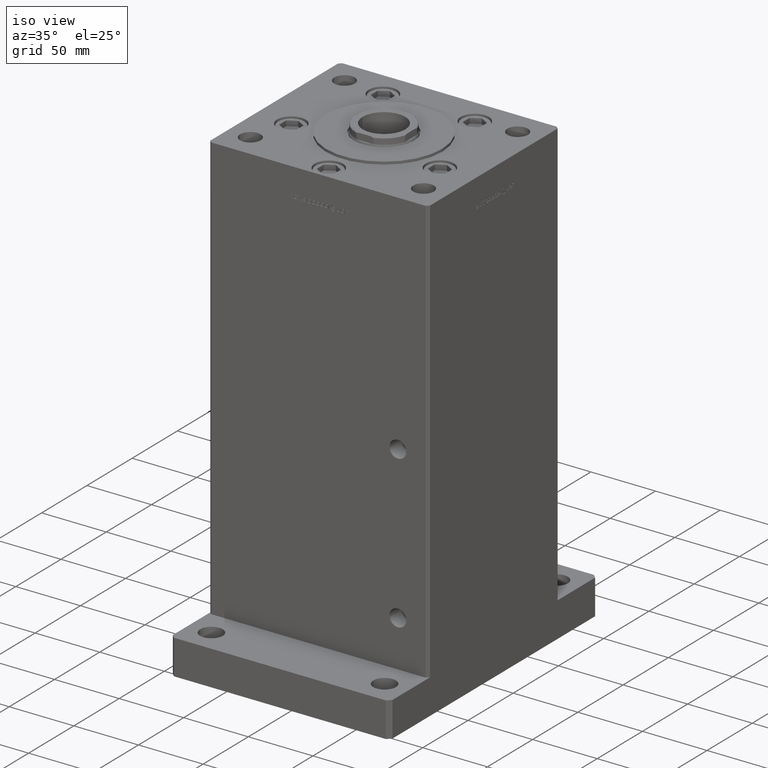
[diagram: clean part render]
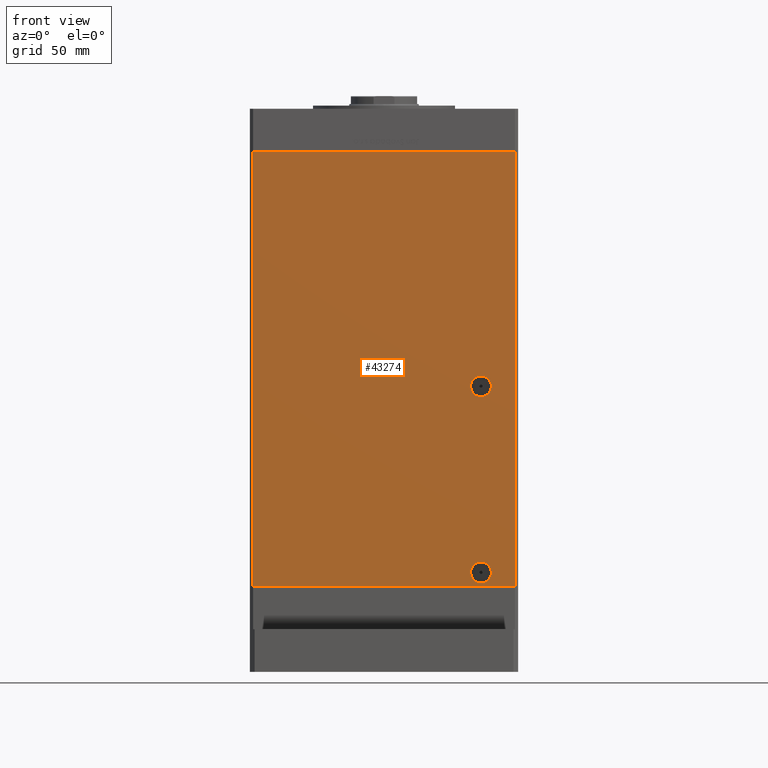
[diagram: tour spotlight — one face highlighted and labeled with its STEP entity id]
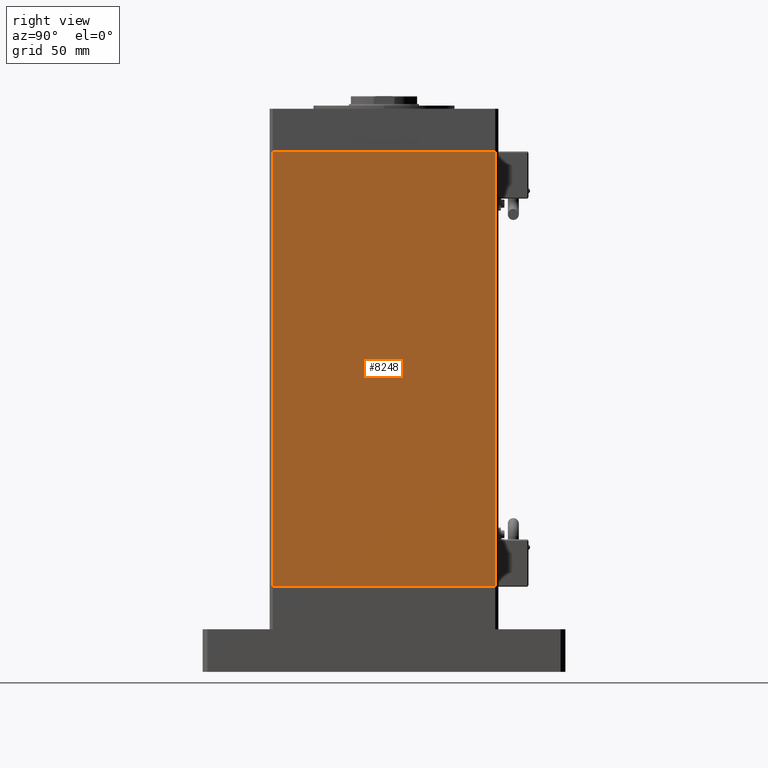
[diagram: tour spotlight — one face highlighted and labeled with its STEP entity id]
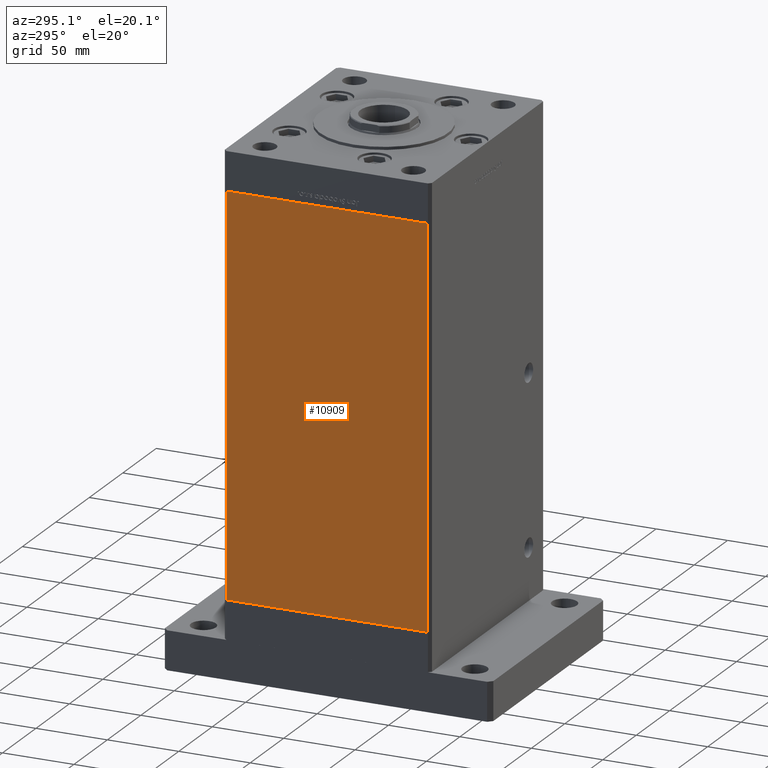
[diagram: tour spotlight — one face highlighted and labeled with its STEP entity id]
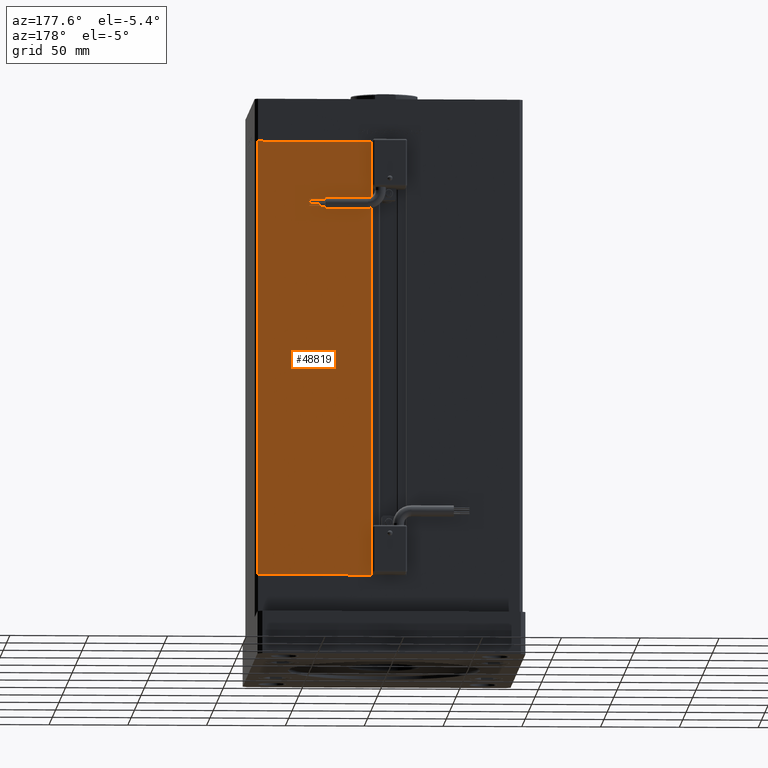
[diagram: tour spotlight — one face highlighted and labeled with its STEP entity id]
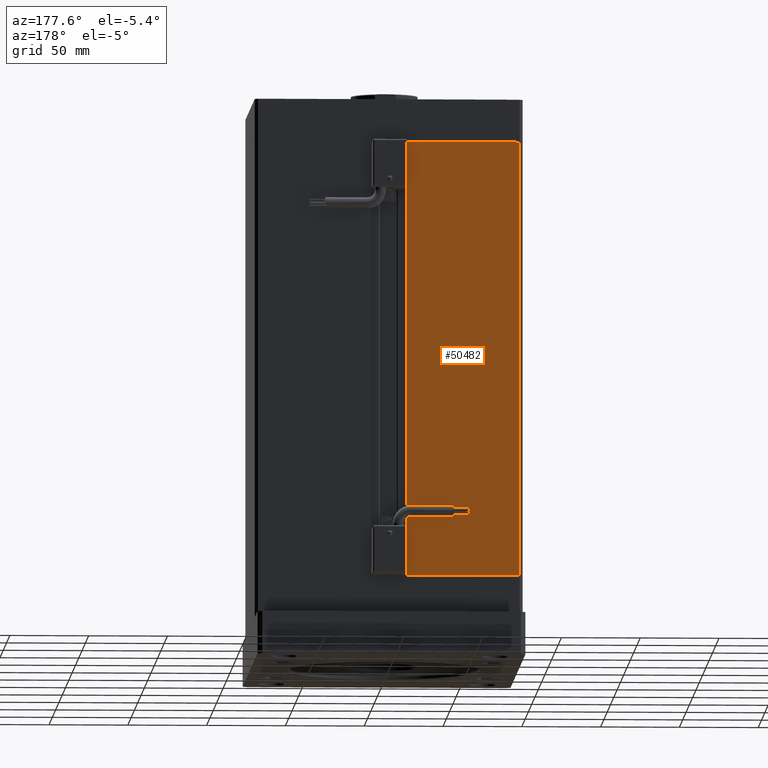
[diagram: tour spotlight — one face highlighted and labeled with its STEP entity id]
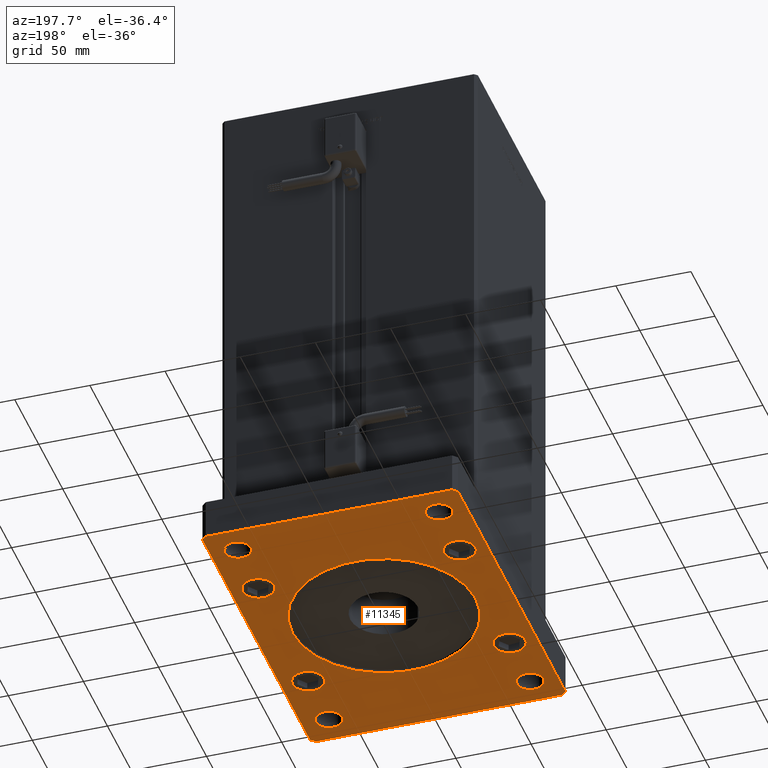
[diagram: tour spotlight — one face highlighted and labeled with its STEP entity id]
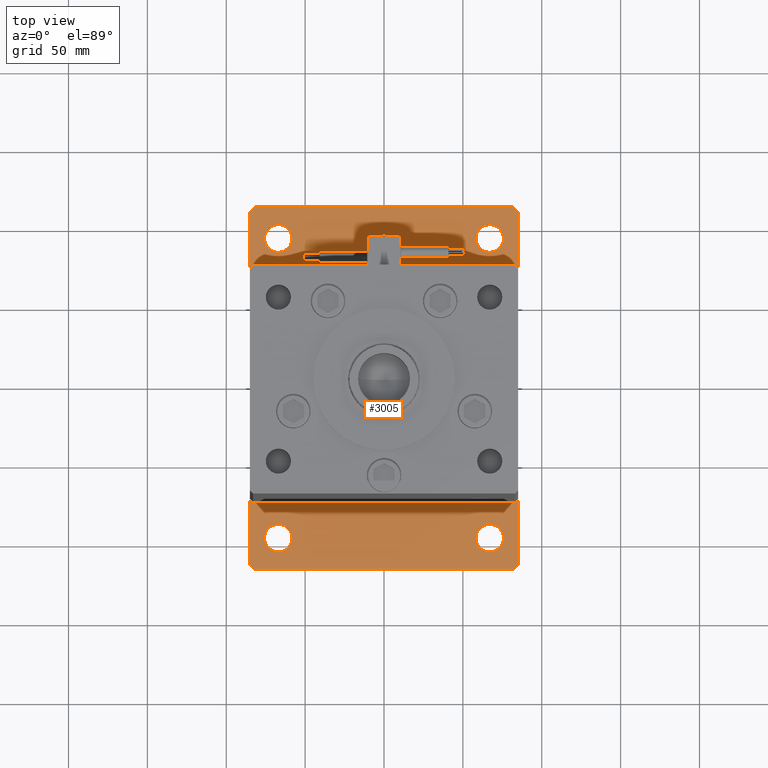
[diagram: tour spotlight — one face highlighted and labeled with its STEP entity id]
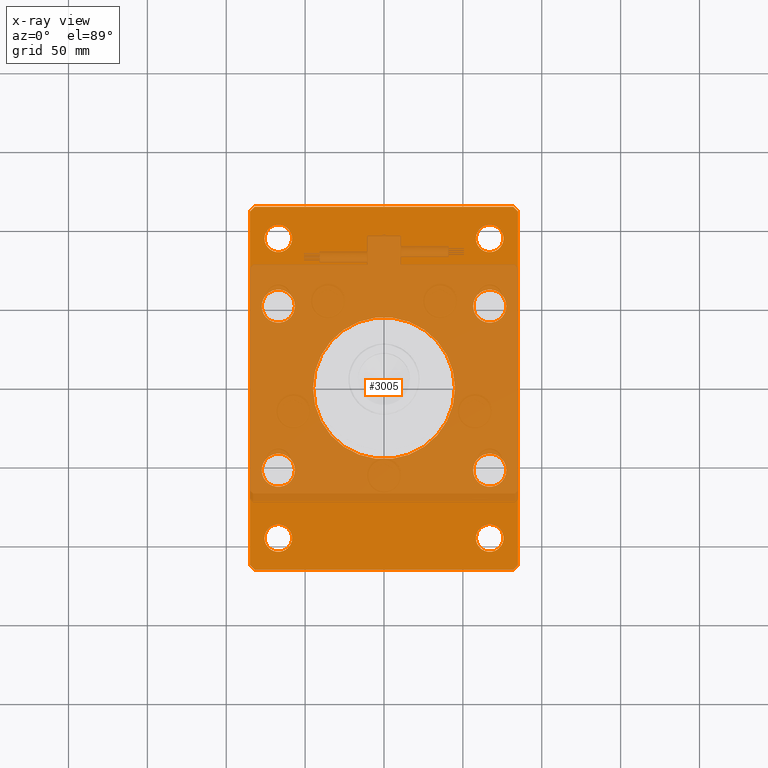
[diagram: x-ray of the same camera — body ghosted, this tour face saturated]
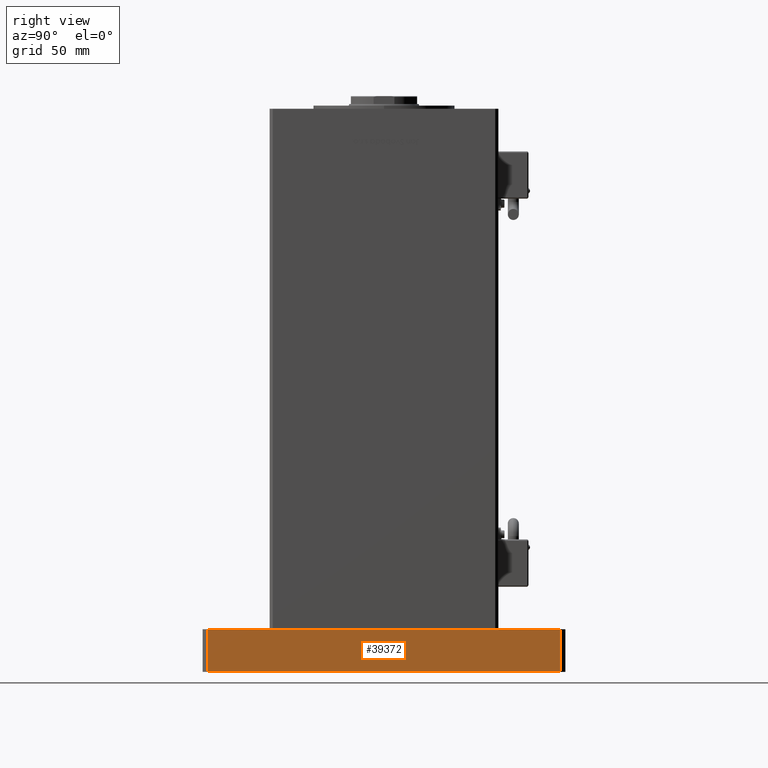
[diagram: tour spotlight — one face highlighted and labeled with its STEP entity id]
A machine part: a face-by-face anatomy tour. The part has 1509 B-rep faces; the first image is the clean iso view, then the 8 largest visible faces are spotlighted one at a time (largest first), each with its STEP entity span.

Face 1 — front view, entity #43274. In plain terms, the highlighted planar face has unit normal (0, 1, 0).
Definition (entity closure, byte-faithful):
#802 = VERTEX_POINT ( 'NONE', #20979 ) ;
#917 = EDGE_CURVE ( 'NONE', #50514, #17599, #29861, .T. ) ;
#1892 = DIRECTION ( 'NONE',  ( 0.000000000000000000, 0.000000000000000000, -1.000000000000000000 ) ) ;
#2698 = DIRECTION ( 'NONE',  ( 1.000000000000000000, 0.000000000000000000, 0.000000000000000000 ) ) ;
#2853 = FACE_OUTER_BOUND ( 'NONE', #40716, .T. ) ;
#5970 = CIRCLE ( 'NONE', #15110, 6.579999999999988525 ) ;
#6272 = EDGE_CURVE ( 'NONE', #6419, #47272, #16369, .T. ) ;
#6419 = VERTEX_POINT ( 'NONE', #13480 ) ;
#6555 = PLANE ( 'NONE',  #24887 ) ;
#6959 = CARTESIAN_POINT ( 'NONE',  ( -82.99999999999998579, -72.50000000000002842, 276.0000000000000000 ) ) ;
#7529 = DIRECTION ( 'NONE',  ( -0.000000000000000000, -0.000000000000000000, -1.000000000000000000 ) ) ;
#7916 = DIRECTION ( 'NONE',  ( 1.000000000000000000, 0.000000000000000000, 0.000000000000000000 ) ) ;
#9813 = DIRECTION ( 'NONE',  ( 0.000000000000000000, 0.000000000000000000, -1.000000000000000000 ) ) ;
#9971 = VECTOR ( 'NONE', #2698, 1000.000000000000000 ) ;
#11081 = CARTESIAN_POINT ( 'NONE',  ( 82.99999999999998579, -72.50000000000002842, 0.000000000000000000 ) ) ;
#11962 = DIRECTION ( 'NONE',  ( 0.000000000000000000, -0.000000000000000000, 1.000000000000000000 ) ) ;
#12087 = LINE ( 'NONE', #38879, #13584 ) ;
#12401 = ORIENTED_EDGE ( 'NONE', *, *, #917, .T. ) ;
#13480 = CARTESIAN_POINT ( 'NONE',  ( -82.99999999999998579, -72.50000000000002842, 276.0000000000000000 ) ) ;
#13584 = VECTOR ( 'NONE', #7529, 1000.000000000000000 ) ;
#14079 = EDGE_CURVE ( 'NONE', #56003, #802, #30228, .T. ) ;
#14094 = DIRECTION ( 'NONE',  ( 0.000000000000000000, -1.000000000000000000, 0.000000000000000000 ) ) ;
#14554 = EDGE_CURVE ( 'NONE', #802, #56003, #43005, .T. ) ;
#15110 = AXIS2_PLACEMENT_3D ( 'NONE', #54919, #54067, #1892 ) ;
#15690 = AXIS2_PLACEMENT_3D ( 'NONE', #34438, #43836, #43272 ) ;
#16369 = LINE ( 'NONE', #6959, #9971 ) ;
#17599 = VERTEX_POINT ( 'NONE', #43875 ) ;
#17815 = DIRECTION ( 'NONE',  ( -0.000000000000000000, 1.000000000000000000, -0.000000000000000000 ) ) ;
#18590 = EDGE_LOOP ( 'NONE', ( #12401, #28589 ) ) ;
#18644 = CARTESIAN_POINT ( 'NONE',  ( 61.49999999999997868, -72.50000000000002842, 127.0000000000000000 ) ) ;
#19243 = CARTESIAN_POINT ( 'NONE',  ( 61.49999999999997868, -72.50000000000002842, 120.4200000000000159 ) ) ;
#19677 = DIRECTION ( 'NONE',  ( 0.000000000000000000, 1.000000000000000000, 0.000000000000000000 ) ) ;
#20979 = CARTESIAN_POINT ( 'NONE',  ( 61.49999999999999289, -72.50000000000002842, 15.58000000000000362 ) ) ;
#21571 = ORIENTED_EDGE ( 'NONE', *, *, #14079, .F. ) ;
#24532 = CARTESIAN_POINT ( 'NONE',  ( 82.99999999999998579, -72.50000000000002842, 276.0000000000000000 ) ) ;
#24887 = AXIS2_PLACEMENT_3D ( 'NONE', #46483, #19677, #11962 ) ;
#25286 = VECTOR ( 'NONE', #27542, 1000.000000000000000 ) ;
#26224 = AXIS2_PLACEMENT_3D ( 'NONE', #18644, #17815, #40319 ) ;
#27542 = DIRECTION ( 'NONE',  ( -0.000000000000000000, -0.000000000000000000, -1.000000000000000000 ) ) ;
#27805 = VERTEX_POINT ( 'NONE', #11081 ) ;
#28091 = EDGE_CURVE ( 'NONE', #17599, #50514, #5970, .T. ) ;
#28348 = EDGE_LOOP ( 'NONE', ( #21571, #47206 ) ) ;
#28589 = ORIENTED_EDGE ( 'NONE', *, *, #28091, .T. ) ;
#28906 = ORIENTED_EDGE ( 'NONE', *, *, #36054, .F. ) ;
#29090 = FACE_BOUND ( 'NONE', #18590, .T. ) ;
#29861 = CIRCLE ( 'NONE', #26224, 6.579999999999988525 ) ;
#30228 = CIRCLE ( 'NONE', #15690, 6.579999999999994742 ) ;
#32355 = EDGE_CURVE ( 'NONE', #6419, #34083, #49220, .T. ) ;
#33304 = ORIENTED_EDGE ( 'NONE', *, *, #32355, .T. ) ;
#34083 = VERTEX_POINT ( 'NONE', #39254 ) ;
#34438 = CARTESIAN_POINT ( 'NONE',  ( 61.49999999999999289, -72.50000000000002842, 9.000000000000007105 ) ) ;
#34740 = CARTESIAN_POINT ( 'NONE',  ( 61.49999999999999289, -72.50000000000002842, 2.420000000000013252 ) ) ;
#36054 = EDGE_CURVE ( 'NONE', #47272, #27805, #12087, .T. ) ;
#38879 = CARTESIAN_POINT ( 'NONE',  ( 82.99999999999998579, -72.50000000000002842, 276.0000000000000000 ) ) ;
#39254 = CARTESIAN_POINT ( 'NONE',  ( -82.99999999999998579, -72.50000000000002842, 0.000000000000000000 ) ) ;
#40319 = DIRECTION ( 'NONE',  ( 0.000000000000000000, 0.000000000000000000, -1.000000000000000000 ) ) ;
#40716 = EDGE_LOOP ( 'NONE', ( #41793, #28906, #47177, #33304 ) ) ;
#41114 = EDGE_CURVE ( 'NONE', #34083, #27805, #51267, .T. ) ;
#41793 = ORIENTED_EDGE ( 'NONE', *, *, #41114, .T. ) ;
#41884 = CARTESIAN_POINT ( 'NONE',  ( -82.99999999999998579, -72.50000000000002842, 0.000000000000000000 ) ) ;
#43005 = CIRCLE ( 'NONE', #44784, 6.579999999999994742 ) ;
#43272 = DIRECTION ( 'NONE',  ( 0.000000000000000000, 0.000000000000000000, -1.000000000000000000 ) ) ;
#43274 = ADVANCED_FACE ( 'NONE', ( #51030, #2853, #29090 ), #6555, .F. ) ;
#43836 = DIRECTION ( 'NONE',  ( 0.000000000000000000, -1.000000000000000000, 0.000000000000000000 ) ) ;
#43875 = CARTESIAN_POINT ( 'NONE',  ( 61.49999999999997868, -72.50000000000002842, 133.5800000000000125 ) ) ;
#44784 = AXIS2_PLACEMENT_3D ( 'NONE', #53155, #14094, #9813 ) ;
#45520 = CARTESIAN_POINT ( 'NONE',  ( -82.99999999999998579, -72.50000000000002842, 276.0000000000000000 ) ) ;
#46483 = CARTESIAN_POINT ( 'NONE',  ( -82.99999999999998579, -72.50000000000002842, 276.0000000000000000 ) ) ;
#47177 = ORIENTED_EDGE ( 'NONE', *, *, #6272, .F. ) ;
#47206 = ORIENTED_EDGE ( 'NONE', *, *, #14554, .F. ) ;
#47272 = VERTEX_POINT ( 'NONE', #24532 ) ;
#48233 = VECTOR ( 'NONE', #7916, 1000.000000000000000 ) ;
#49220 = LINE ( 'NONE', #45520, #25286 ) ;
#50514 = VERTEX_POINT ( 'NONE', #19243 ) ;
#51030 = FACE_BOUND ( 'NONE', #28348, .T. ) ;
#51267 = LINE ( 'NONE', #41884, #48233 ) ;
#53155 = CARTESIAN_POINT ( 'NONE',  ( 61.49999999999999289, -72.50000000000002842, 9.000000000000007105 ) ) ;
#54067 = DIRECTION ( 'NONE',  ( -0.000000000000000000, 1.000000000000000000, -0.000000000000000000 ) ) ;
#54919 = CARTESIAN_POINT ( 'NONE',  ( 61.49999999999997868, -72.50000000000002842, 127.0000000000000000 ) ) ;
#56003 = VERTEX_POINT ( 'NONE', #34740 ) ;

Face 2 — right view, entity #8248. In plain terms, the highlighted planar face has unit normal (1, -0, 0).
Definition (entity closure, byte-faithful):
#156 = CARTESIAN_POINT ( 'NONE',  ( 85.00000000000001421, 70.49999999999998579, 0.000000000000000000 ) ) ;
#298 = DIRECTION ( 'NONE',  ( 1.968480540115525417E-16, 1.000000000000000000, 0.000000000000000000 ) ) ;
#997 = LINE ( 'NONE', #156, #5920 ) ;
#2211 = EDGE_CURVE ( 'NONE', #42793, #9581, #24611, .T. ) ;
#2798 = ORIENTED_EDGE ( 'NONE', *, *, #52429, .F. ) ;
#3815 = CARTESIAN_POINT ( 'NONE',  ( 84.99999999999998579, -70.50000000000001421, 276.0000000000000000 ) ) ;
#5920 = VECTOR ( 'NONE', #13548, 1000.000000000000000 ) ;
#8248 = ADVANCED_FACE ( 'NONE', ( #39361 ), #56189, .T. ) ;
#8269 = AXIS2_PLACEMENT_3D ( 'NONE', #43355, #8285, #298 ) ;
#8285 = DIRECTION ( 'NONE',  ( 1.000000000000000000, -1.968480540115525417E-16, 0.000000000000000000 ) ) ;
#9581 = VERTEX_POINT ( 'NONE', #3815 ) ;
#9759 = DIRECTION ( 'NONE',  ( -0.000000000000000000, -0.000000000000000000, -1.000000000000000000 ) ) ;
#11572 = VECTOR ( 'NONE', #9759, 1000.000000000000000 ) ;
#11613 = ORIENTED_EDGE ( 'NONE', *, *, #29944, .F. ) ;
#13548 = DIRECTION ( 'NONE',  ( -1.968480540115525664E-16, -1.000000000000000000, 0.000000000000000000 ) ) ;
#16331 = CARTESIAN_POINT ( 'NONE',  ( 85.00000000000001421, 70.49999999999998579, 276.0000000000000000 ) ) ;
#17766 = CARTESIAN_POINT ( 'NONE',  ( 85.00000000000001421, 70.49999999999998579, 276.0000000000000000 ) ) ;
#22673 = CARTESIAN_POINT ( 'NONE',  ( 84.99999999999998579, -70.50000000000001421, 276.0000000000000000 ) ) ;
#22949 = LINE ( 'NONE', #22673, #36051 ) ;
#24611 = LINE ( 'NONE', #16331, #34450 ) ;
#25666 = CARTESIAN_POINT ( 'NONE',  ( 85.00000000000001421, 70.49999999999998579, 0.000000000000000000 ) ) ;
#25773 = CARTESIAN_POINT ( 'NONE',  ( 85.00000000000001421, 70.49999999999998579, 276.0000000000000000 ) ) ;
#26465 = ORIENTED_EDGE ( 'NONE', *, *, #55207, .T. ) ;
#27055 = ORIENTED_EDGE ( 'NONE', *, *, #2211, .T. ) ;
#27156 = LINE ( 'NONE', #17766, #11572 ) ;
#27582 = VERTEX_POINT ( 'NONE', #25666 ) ;
#29944 = EDGE_CURVE ( 'NONE', #42793, #27582, #27156, .T. ) ;
#32030 = VERTEX_POINT ( 'NONE', #39684 ) ;
#32880 = DIRECTION ( 'NONE',  ( -1.968480540115525664E-16, -1.000000000000000000, 0.000000000000000000 ) ) ;
#34450 = VECTOR ( 'NONE', #32880, 1000.000000000000000 ) ;
#35225 = DIRECTION ( 'NONE',  ( -0.000000000000000000, -0.000000000000000000, -1.000000000000000000 ) ) ;
#36051 = VECTOR ( 'NONE', #35225, 1000.000000000000000 ) ;
#39361 = FACE_OUTER_BOUND ( 'NONE', #50265, .T. ) ;
#39684 = CARTESIAN_POINT ( 'NONE',  ( 84.99999999999998579, -70.50000000000001421, 0.000000000000000000 ) ) ;
#42793 = VERTEX_POINT ( 'NONE', #25773 ) ;
#43355 = CARTESIAN_POINT ( 'NONE',  ( 85.00000000000001421, 70.49999999999998579, 276.0000000000000000 ) ) ;
#50265 = EDGE_LOOP ( 'NONE', ( #2798, #11613, #27055, #26465 ) ) ;
#52429 = EDGE_CURVE ( 'NONE', #27582, #32030, #997, .T. ) ;
#55207 = EDGE_CURVE ( 'NONE', #9581, #32030, #22949, .T. ) ;
#56189 = PLANE ( 'NONE',  #8269 ) ;

Face 3 — auxiliary view, entity #10909. In plain terms, the highlighted planar face has unit normal (1, 0, 0).
Definition (entity closure, byte-faithful):
#2452 = LINE ( 'NONE', #19555, #40004 ) ;
#3188 = LINE ( 'NONE', #51088, #22667 ) ;
#5997 = EDGE_CURVE ( 'NONE', #27590, #49676, #37543, .T. ) ;
#6716 = DIRECTION ( 'NONE',  ( 1.968480540115525664E-16, -1.000000000000000000, 0.000000000000000000 ) ) ;
#8236 = DIRECTION ( 'NONE',  ( -1.968480540115525417E-16, 1.000000000000000000, 0.000000000000000000 ) ) ;
#9083 = CARTESIAN_POINT ( 'NONE',  ( -85.00000000000001421, 70.49999999999998579, 276.0000000000000000 ) ) ;
#10909 = ADVANCED_FACE ( 'NONE', ( #42756 ), #25911, .F. ) ;
#12018 = DIRECTION ( 'NONE',  ( -0.000000000000000000, -0.000000000000000000, -1.000000000000000000 ) ) ;
#12428 = CARTESIAN_POINT ( 'NONE',  ( -85.00000000000001421, 70.49999999999998579, 276.0000000000000000 ) ) ;
#14150 = ORIENTED_EDGE ( 'NONE', *, *, #31117, .T. ) ;
#18267 = CARTESIAN_POINT ( 'NONE',  ( -84.99999999999998579, -70.50000000000001421, 0.000000000000000000 ) ) ;
#19555 = CARTESIAN_POINT ( 'NONE',  ( -85.00000000000001421, 70.49999999999998579, 0.000000000000000000 ) ) ;
#21114 = CARTESIAN_POINT ( 'NONE',  ( -85.00000000000001421, 70.49999999999998579, 276.0000000000000000 ) ) ;
#21251 = VERTEX_POINT ( 'NONE', #18267 ) ;
#22667 = VECTOR ( 'NONE', #12018, 1000.000000000000000 ) ;
#25911 = PLANE ( 'NONE',  #32002 ) ;
#27590 = VERTEX_POINT ( 'NONE', #21114 ) ;
#31117 = EDGE_CURVE ( 'NONE', #27590, #31955, #53609, .T. ) ;
#31955 = VERTEX_POINT ( 'NONE', #35956 ) ;
#32002 = AXIS2_PLACEMENT_3D ( 'NONE', #9083, #34747, #8236 ) ;
#34537 = CARTESIAN_POINT ( 'NONE',  ( -84.99999999999998579, -70.50000000000001421, 276.0000000000000000 ) ) ;
#34747 = DIRECTION ( 'NONE',  ( 1.000000000000000000, 1.968480540115525417E-16, -0.000000000000000000 ) ) ;
#35956 = CARTESIAN_POINT ( 'NONE',  ( -85.00000000000001421, 70.49999999999998579, 0.000000000000000000 ) ) ;
#36311 = EDGE_CURVE ( 'NONE', #49676, #21251, #3188, .T. ) ;
#36785 = CARTESIAN_POINT ( 'NONE',  ( -85.00000000000001421, 70.49999999999998579, 276.0000000000000000 ) ) ;
#37350 = EDGE_LOOP ( 'NONE', ( #41358, #42491, #38070, #14150 ) ) ;
#37543 = LINE ( 'NONE', #12428, #41872 ) ;
#37686 = EDGE_CURVE ( 'NONE', #31955, #21251, #2452, .T. ) ;
#38070 = ORIENTED_EDGE ( 'NONE', *, *, #5997, .F. ) ;
#38663 = DIRECTION ( 'NONE',  ( 1.968480540115525664E-16, -1.000000000000000000, 0.000000000000000000 ) ) ;
#40004 = VECTOR ( 'NONE', #6716, 1000.000000000000000 ) ;
#41358 = ORIENTED_EDGE ( 'NONE', *, *, #37686, .T. ) ;
#41872 = VECTOR ( 'NONE', #38663, 1000.000000000000000 ) ;
#42491 = ORIENTED_EDGE ( 'NONE', *, *, #36311, .F. ) ;
#42756 = FACE_OUTER_BOUND ( 'NONE', #37350, .T. ) ;
#46219 = VECTOR ( 'NONE', #54456, 1000.000000000000000 ) ;
#49676 = VERTEX_POINT ( 'NONE', #34537 ) ;
#51088 = CARTESIAN_POINT ( 'NONE',  ( -84.99999999999998579, -70.50000000000001421, 276.0000000000000000 ) ) ;
#53609 = LINE ( 'NONE', #36785, #46219 ) ;
#54456 = DIRECTION ( 'NONE',  ( -0.000000000000000000, -0.000000000000000000, -1.000000000000000000 ) ) ;

Face 4 — auxiliary view, entity #48819. In plain terms, the highlighted planar face has unit normal (0, -1, 0).
Definition (entity closure, byte-faithful):
#1807 = CARTESIAN_POINT ( 'NONE',  ( 83.00000000000001421, 72.49999999999998579, 276.0000000000000000 ) ) ;
#2047 = CARTESIAN_POINT ( 'NONE',  ( 11.25000000000000178, 72.49999999999998579, 0.000000000000000000 ) ) ;
#2871 = EDGE_CURVE ( 'NONE', #29089, #24819, #41161, .T. ) ;
#3691 = EDGE_CURVE ( 'NONE', #29186, #35186, #16073, .T. ) ;
#4879 = VECTOR ( 'NONE', #48561, 1000.000000000000000 ) ;
#7506 = CARTESIAN_POINT ( 'NONE',  ( 11.25000000000000178, 72.49999999999998579, 0.000000000000000000 ) ) ;
#8930 = ORIENTED_EDGE ( 'NONE', *, *, #45998, .T. ) ;
#9160 = ORIENTED_EDGE ( 'NONE', *, *, #2871, .T. ) ;
#14221 = ORIENTED_EDGE ( 'NONE', *, *, #3691, .T. ) ;
#16073 = LINE ( 'NONE', #7506, #29943 ) ;
#16228 = DIRECTION ( 'NONE',  ( -1.000000000000000000, 0.000000000000000000, 0.000000000000000000 ) ) ;
#21297 = VECTOR ( 'NONE', #16228, 1000.000000000000000 ) ;
#23928 = LINE ( 'NONE', #50178, #21297 ) ;
#24220 = PLANE ( 'NONE',  #36759 ) ;
#24510 = CARTESIAN_POINT ( 'NONE',  ( -11.25000000000000178, 72.49999999999998579, 276.0000000000000000 ) ) ;
#24819 = VERTEX_POINT ( 'NONE', #47743 ) ;
#29089 = VERTEX_POINT ( 'NONE', #46327 ) ;
#29186 = VERTEX_POINT ( 'NONE', #2047 ) ;
#29943 = VECTOR ( 'NONE', #33740, 1000.000000000000000 ) ;
#30768 = ORIENTED_EDGE ( 'NONE', *, *, #48760, .T. ) ;
#31444 = LINE ( 'NONE', #40000, #4879 ) ;
#33740 = DIRECTION ( 'NONE',  ( -0.000000000000000000, -0.000000000000000000, 1.000000000000000000 ) ) ;
#33888 = DIRECTION ( 'NONE',  ( 0.000000000000000000, -1.000000000000000000, 0.000000000000000000 ) ) ;
#35186 = VERTEX_POINT ( 'NONE', #45679 ) ;
#36759 = AXIS2_PLACEMENT_3D ( 'NONE', #24510, #33888, #42458 ) ;
#37719 = EDGE_LOOP ( 'NONE', ( #30768, #14221, #8930, #9160 ) ) ;
#38123 = VECTOR ( 'NONE', #46007, 1000.000000000000000 ) ;
#40000 = CARTESIAN_POINT ( 'NONE',  ( -11.25000000000000178, 72.49999999999998579, 276.0000000000000000 ) ) ;
#41161 = LINE ( 'NONE', #1807, #38123 ) ;
#42458 = DIRECTION ( 'NONE',  ( 0.000000000000000000, -0.000000000000000000, -1.000000000000000000 ) ) ;
#45679 = CARTESIAN_POINT ( 'NONE',  ( 11.24999999999999467, 72.49999999999998579, 276.0000000000000000 ) ) ;
#45896 = FACE_OUTER_BOUND ( 'NONE', #37719, .T. ) ;
#45998 = EDGE_CURVE ( 'NONE', #35186, #29089, #31444, .T. ) ;
#46007 = DIRECTION ( 'NONE',  ( -0.000000000000000000, -0.000000000000000000, -1.000000000000000000 ) ) ;
#46327 = CARTESIAN_POINT ( 'NONE',  ( 83.00000000000001421, 72.49999999999998579, 276.0000000000000000 ) ) ;
#47743 = CARTESIAN_POINT ( 'NONE',  ( 83.00000000000001421, 72.49999999999998579, 0.000000000000000000 ) ) ;
#48561 = DIRECTION ( 'NONE',  ( 1.000000000000000000, 0.000000000000000000, 0.000000000000000000 ) ) ;
#48760 = EDGE_CURVE ( 'NONE', #24819, #29186, #23928, .T. ) ;
#48819 = ADVANCED_FACE ( 'NONE', ( #45896 ), #24220, .F. ) ;
#50178 = CARTESIAN_POINT ( 'NONE',  ( -11.25000000000000178, 72.49999999999998579, 0.000000000000000000 ) ) ;

Face 5 — auxiliary view, entity #50482. In plain terms, the highlighted planar face has unit normal (0, -1, 0).
Definition (entity closure, byte-faithful):
#1392 = CARTESIAN_POINT ( 'NONE',  ( -11.25000000000000178, 72.49999999999998579, 0.000000000000000000 ) ) ;
#3382 = EDGE_CURVE ( 'NONE', #22751, #24424, #5644, .T. ) ;
#3883 = CARTESIAN_POINT ( 'NONE',  ( -11.25000000000000178, 72.49999999999998579, 276.0000000000000000 ) ) ;
#5644 = LINE ( 'NONE', #1392, #51795 ) ;
#7761 = DIRECTION ( 'NONE',  ( -0.000000000000000000, -0.000000000000000000, -1.000000000000000000 ) ) ;
#15815 = ORIENTED_EDGE ( 'NONE', *, *, #53889, .T. ) ;
#16598 = ORIENTED_EDGE ( 'NONE', *, *, #21991, .F. ) ;
#16726 = PLANE ( 'NONE',  #29532 ) ;
#21469 = CARTESIAN_POINT ( 'NONE',  ( -11.25000000000000178, 72.49999999999998579, 0.000000000000000000 ) ) ;
#21991 = EDGE_CURVE ( 'NONE', #31471, #30566, #25453, .T. ) ;
#22751 = VERTEX_POINT ( 'NONE', #21469 ) ;
#23545 = CARTESIAN_POINT ( 'NONE',  ( -11.25000000000000178, 72.49999999999998579, 276.0000000000000000 ) ) ;
#24424 = VERTEX_POINT ( 'NONE', #34950 ) ;
#25287 = DIRECTION ( 'NONE',  ( 0.000000000000000000, -1.000000000000000000, 0.000000000000000000 ) ) ;
#25453 = LINE ( 'NONE', #42013, #34161 ) ;
#29532 = AXIS2_PLACEMENT_3D ( 'NONE', #3883, #25287, #55789 ) ;
#30566 = VERTEX_POINT ( 'NONE', #40414 ) ;
#31471 = VERTEX_POINT ( 'NONE', #45226 ) ;
#33110 = VECTOR ( 'NONE', #37516, 1000.000000000000000 ) ;
#34161 = VECTOR ( 'NONE', #7761, 1000.000000000000000 ) ;
#34950 = CARTESIAN_POINT ( 'NONE',  ( -11.25000000000000178, 72.49999999999998579, 276.0000000000000000 ) ) ;
#37052 = DIRECTION ( 'NONE',  ( -1.000000000000000000, 0.000000000000000000, 0.000000000000000000 ) ) ;
#37516 = DIRECTION ( 'NONE',  ( 1.000000000000000000, 0.000000000000000000, 0.000000000000000000 ) ) ;
#38748 = VECTOR ( 'NONE', #37052, 1000.000000000000000 ) ;
#40085 = LINE ( 'NONE', #23545, #33110 ) ;
#40414 = CARTESIAN_POINT ( 'NONE',  ( -83.00000000000001421, 72.49999999999998579, 0.000000000000000000 ) ) ;
#40737 = DIRECTION ( 'NONE',  ( -0.000000000000000000, -0.000000000000000000, 1.000000000000000000 ) ) ;
#40800 = EDGE_LOOP ( 'NONE', ( #47280, #43601, #15815, #16598 ) ) ;
#42013 = CARTESIAN_POINT ( 'NONE',  ( -83.00000000000001421, 72.49999999999998579, 276.0000000000000000 ) ) ;
#43601 = ORIENTED_EDGE ( 'NONE', *, *, #3382, .F. ) ;
#44497 = EDGE_CURVE ( 'NONE', #31471, #24424, #40085, .T. ) ;
#45226 = CARTESIAN_POINT ( 'NONE',  ( -83.00000000000001421, 72.49999999999998579, 276.0000000000000000 ) ) ;
#46174 = LINE ( 'NONE', #49887, #38748 ) ;
#47248 = FACE_OUTER_BOUND ( 'NONE', #40800, .T. ) ;
#47280 = ORIENTED_EDGE ( 'NONE', *, *, #44497, .T. ) ;
#49887 = CARTESIAN_POINT ( 'NONE',  ( -11.25000000000000178, 72.49999999999998579, 0.000000000000000000 ) ) ;
#50482 = ADVANCED_FACE ( 'NONE', ( #47248 ), #16726, .F. ) ;
#51795 = VECTOR ( 'NONE', #40737, 1000.000000000000000 ) ;
#53889 = EDGE_CURVE ( 'NONE', #22751, #30566, #46174, .T. ) ;
#55789 = DIRECTION ( 'NONE',  ( 0.000000000000000000, -0.000000000000000000, -1.000000000000000000 ) ) ;

Face 6 — auxiliary view, entity #11345. In plain terms, the highlighted planar face has unit normal (0, 0, 1).
Definition (entity closure, byte-faithful):
#162 = LINE ( 'NONE', #18659, #49996 ) ;
#402 = VERTEX_POINT ( 'NONE', #38228 ) ;
#463 = FACE_BOUND ( 'NONE', #15839, .T. ) ;
#885 = ORIENTED_EDGE ( 'NONE', *, *, #26318, .T. ) ;
#1140 = CARTESIAN_POINT ( 'NONE',  ( 66.99999999999997158, -95.00000000000001421, 0.000000000000000000 ) ) ;
#1203 = AXIS2_PLACEMENT_3D ( 'NONE', #9568, #35245, #26965 ) ;
#1262 = DIRECTION ( 'NONE',  ( 1.000000000000000000, 0.000000000000000000, 0.000000000000000000 ) ) ;
#1436 = CARTESIAN_POINT ( 'NONE',  ( -56.50000000000000000, -52.00000000000000000, 0.000000000000000000 ) ) ;
#1515 = AXIS2_PLACEMENT_3D ( 'NONE', #3499, #28319, #20619 ) ;
#1785 = AXIS2_PLACEMENT_3D ( 'NONE', #37739, #11791, #32895 ) ;
#1939 = CARTESIAN_POINT ( 'NONE',  ( 67.00000000000001421, -52.00000000000000000, 0.000000000000000000 ) ) ;
#1945 = VERTEX_POINT ( 'NONE', #30905 ) ;
#2113 = CARTESIAN_POINT ( 'NONE',  ( 82.00000000000004263, 115.0000000000000284, 0.000000000000000000 ) ) ;
#2209 = AXIS2_PLACEMENT_3D ( 'NONE', #45800, #8133, #29268 ) ;
#2565 = VERTEX_POINT ( 'NONE', #18132 ) ;
#2777 = CARTESIAN_POINT ( 'NONE',  ( -61.00000000000000000, 0.000000000000000000, 0.000000000000000000 ) ) ;
#2819 = CIRCLE ( 'NONE', #1785, 8.750000000000007105 ) ;
#3253 = DIRECTION ( 'NONE',  ( 0.000000000000000000, 0.000000000000000000, 1.000000000000000000 ) ) ;
#3499 = CARTESIAN_POINT ( 'NONE',  ( 67.00000000000000000, 94.99999999999997158, 0.000000000000000000 ) ) ;
#3951 = CARTESIAN_POINT ( 'NONE',  ( -85.00000000000001421, 112.0000000000000000, 0.000000000000000000 ) ) ;
#4109 = CIRCLE ( 'NONE', #45140, 8.750000000000007105 ) ;
#4479 = ORIENTED_EDGE ( 'NONE', *, *, #28460, .F. ) ;
#4576 = ORIENTED_EDGE ( 'NONE', *, *, #26723, .F. ) ;
#4713 = CARTESIAN_POINT ( 'NONE',  ( -66.99999999999997158, -95.00000000000001421, 0.000000000000000000 ) ) ;
#4733 = FACE_BOUND ( 'NONE', #31189, .T. ) ;
#4932 = CARTESIAN_POINT ( 'NONE',  ( 75.75000000000001421, 94.99999999999997158, 0.000000000000000000 ) ) ;
#5353 = EDGE_CURVE ( 'NONE', #25829, #37074, #44884, .T. ) ;
#5373 = EDGE_LOOP ( 'NONE', ( #29466, #885 ) ) ;
#5408 = EDGE_CURVE ( 'NONE', #43868, #54995, #55701, .T. ) ;
#5563 = CIRCLE ( 'NONE', #23780, 8.750000000000007105 ) ;
#6649 = EDGE_LOOP ( 'NONE', ( #19920, #50762 ) ) ;
#7540 = CIRCLE ( 'NONE', #54091, 8.750000000000007105 ) ;
#7982 = CARTESIAN_POINT ( 'NONE',  ( 0.000000000000000000, 0.000000000000000000, 0.000000000000000000 ) ) ;
#8133 = DIRECTION ( 'NONE',  ( 0.000000000000000000, 0.000000000000000000, 1.000000000000000000 ) ) ;
#8140 = DIRECTION ( 'NONE',  ( -1.000000000000000000, 0.000000000000000000, 0.000000000000000000 ) ) ;
#8389 = VERTEX_POINT ( 'NONE', #51217 ) ;
#8454 = CARTESIAN_POINT ( 'NONE',  ( 56.50000000000002132, -52.00000000000000000, 0.000000000000000000 ) ) ;
#8743 = VECTOR ( 'NONE', #34026, 1000.000000000000000 ) ;
#8762 = EDGE_CURVE ( 'NONE', #36455, #42753, #5563, .T. ) ;
#9568 = CARTESIAN_POINT ( 'NONE',  ( 0.000000000000000000, 0.000000000000000000, 0.000000000000000000 ) ) ;
#10364 = EDGE_CURVE ( 'NONE', #41762, #23196, #25650, .T. ) ;
#10495 = CIRCLE ( 'NONE', #48770, 61.00000000000000000 ) ;
#11345 = ADVANCED_FACE ( 'NONE', ( #22964, #40363, #18128, #35523, #14410, #32091, #4733, #43808, #39528, #463 ), #17852, .F. ) ;
#11400 = AXIS2_PLACEMENT_3D ( 'NONE', #20089, #50595, #39081 ) ;
#11791 = DIRECTION ( 'NONE',  ( 0.000000000000000000, 0.000000000000000000, 1.000000000000000000 ) ) ;
#12068 = CIRCLE ( 'NONE', #23898, 8.750000000000007105 ) ;
#12075 = CARTESIAN_POINT ( 'NONE',  ( 85.00000000000001421, -111.9999999999999005, 0.000000000000000000 ) ) ;
#12132 = VERTEX_POINT ( 'NONE', #8454 ) ;
#12365 = CARTESIAN_POINT ( 'NONE',  ( 67.00000000000000000, 94.99999999999997158, 0.000000000000000000 ) ) ;
#12431 = CARTESIAN_POINT ( 'NONE',  ( 82.00000000000002842, -114.9999999999999147, 0.000000000000000000 ) ) ;
#12508 = EDGE_CURVE ( 'NONE', #46408, #37877, #24172, .T. ) ;
#12939 = DIRECTION ( 'NONE',  ( 1.000000000000000000, 0.000000000000000000, 0.000000000000000000 ) ) ;
#13221 = DIRECTION ( 'NONE',  ( 0.000000000000000000, 0.000000000000000000, 1.000000000000000000 ) ) ;
#13275 = DIRECTION ( 'NONE',  ( 1.000000000000000000, 0.000000000000000000, 0.000000000000000000 ) ) ;
#13491 = EDGE_LOOP ( 'NONE', ( #19345, #17666 ) ) ;
#14048 = EDGE_CURVE ( 'NONE', #45121, #8389, #45599, .T. ) ;
#14372 = EDGE_CURVE ( 'NONE', #50342, #402, #53900, .T. ) ;
#14410 = FACE_BOUND ( 'NONE', #18291, .T. ) ;
#14957 = CIRCLE ( 'NONE', #2209, 10.50000000000000178 ) ;
#15284 = EDGE_CURVE ( 'NONE', #43730, #1945, #12068, .T. ) ;
#15839 = EDGE_LOOP ( 'NONE', ( #32513, #42201 ) ) ;
#16085 = LINE ( 'NONE', #24918, #8743 ) ;
#16128 = CARTESIAN_POINT ( 'NONE',  ( -67.00000000000000000, 52.00000000000001421, 0.000000000000000000 ) ) ;
#16259 = CARTESIAN_POINT ( 'NONE',  ( 82.00000000000004263, 115.0000000000000284, 0.000000000000000000 ) ) ;
#17224 = CARTESIAN_POINT ( 'NONE',  ( 67.00000000000001421, 52.00000000000000000, 0.000000000000000000 ) ) ;
#17265 = AXIS2_PLACEMENT_3D ( 'NONE', #29810, #21529, #38919 ) ;
#17666 = ORIENTED_EDGE ( 'NONE', *, *, #37816, .T. ) ;
#17707 = ORIENTED_EDGE ( 'NONE', *, *, #14372, .F. ) ;
#17852 = PLANE ( 'NONE',  #1203 ) ;
#17905 = AXIS2_PLACEMENT_3D ( 'NONE', #1939, #23325, #53833 ) ;
#18128 = FACE_BOUND ( 'NONE', #6649, .T. ) ;
#18132 = CARTESIAN_POINT ( 'NONE',  ( -56.50000000000000000, 52.00000000000001421, 0.000000000000000000 ) ) ;
#18291 = EDGE_LOOP ( 'NONE', ( #56203, #29660 ) ) ;
#18659 = CARTESIAN_POINT ( 'NONE',  ( -84.99999999999998579, -112.0000000000000142, 0.000000000000000000 ) ) ;
#18740 = DIRECTION ( 'NONE',  ( -0.7071067811865459074, -0.7071067811865491270, 0.000000000000000000 ) ) ;
#19345 = ORIENTED_EDGE ( 'NONE', *, *, #10364, .T. ) ;
#19400 = EDGE_CURVE ( 'NONE', #37877, #46408, #14957, .T. ) ;
#19822 = CARTESIAN_POINT ( 'NONE',  ( -75.74999999999998579, -95.00000000000001421, 0.000000000000000000 ) ) ;
#19920 = ORIENTED_EDGE ( 'NONE', *, *, #40936, .T. ) ;
#20083 = AXIS2_PLACEMENT_3D ( 'NONE', #26207, #22486, #48445 ) ;
#20089 = CARTESIAN_POINT ( 'NONE',  ( 66.99999999999997158, -95.00000000000001421, 0.000000000000000000 ) ) ;
#20168 = AXIS2_PLACEMENT_3D ( 'NONE', #17224, #13221, #12939 ) ;
#20524 = VERTEX_POINT ( 'NONE', #41852 ) ;
#20619 = DIRECTION ( 'NONE',  ( 1.000000000000000000, 0.000000000000000000, 0.000000000000000000 ) ) ;
#20696 = CIRCLE ( 'NONE', #32530, 10.50000000000000178 ) ;
#20873 = ORIENTED_EDGE ( 'NONE', *, *, #5353, .F. ) ;
#21225 = AXIS2_PLACEMENT_3D ( 'NONE', #32445, #53828, #28450 ) ;
#21529 = DIRECTION ( 'NONE',  ( 0.000000000000000000, 0.000000000000000000, 1.000000000000000000 ) ) ;
#21801 = CARTESIAN_POINT ( 'NONE',  ( -82.00000000000002842, 115.0000000000000000, 0.000000000000000000 ) ) ;
#21943 = ORIENTED_EDGE ( 'NONE', *, *, #28821, .F. ) ;
#22005 = EDGE_LOOP ( 'NONE', ( #47281, #40430 ) ) ;
#22486 = DIRECTION ( 'NONE',  ( 0.000000000000000000, 0.000000000000000000, 1.000000000000000000 ) ) ;
#22964 = FACE_BOUND ( 'NONE', #37511, .T. ) ;
#23130 = ORIENTED_EDGE ( 'NONE', *, *, #50240, .F. ) ;
#23131 = VERTEX_POINT ( 'NONE', #25963 ) ;
#23196 = VERTEX_POINT ( 'NONE', #27928 ) ;
#23207 = DIRECTION ( 'NONE',  ( -1.000000000000000000, -1.692413147294444984E-16, 0.000000000000000000 ) ) ;
#23325 = DIRECTION ( 'NONE',  ( 0.000000000000000000, 0.000000000000000000, 1.000000000000000000 ) ) ;
#23755 = DIRECTION ( 'NONE',  ( 0.000000000000000000, 0.000000000000000000, 1.000000000000000000 ) ) ;
#23780 = AXIS2_PLACEMENT_3D ( 'NONE', #12365, #3253, #33484 ) ;
#23898 = AXIS2_PLACEMENT_3D ( 'NONE', #1140, #53602, #36207 ) ;
#24115 = DIRECTION ( 'NONE',  ( 1.000000000000000000, 0.000000000000000000, 0.000000000000000000 ) ) ;
#24172 = CIRCLE ( 'NONE', #38738, 10.50000000000000178 ) ;
#24296 = ORIENTED_EDGE ( 'NONE', *, *, #12508, .T. ) ;
#24918 = CARTESIAN_POINT ( 'NONE',  ( -81.99999999999998579, -115.0000000000000142, 0.000000000000000000 ) ) ;
#25650 = CIRCLE ( 'NONE', #20168, 10.49999999999999467 ) ;
#25763 = VERTEX_POINT ( 'NONE', #42487 ) ;
#25829 = VERTEX_POINT ( 'NONE', #16259 ) ;
#25963 = CARTESIAN_POINT ( 'NONE',  ( -58.24999999999997158, -95.00000000000001421, 0.000000000000000000 ) ) ;
#26021 = EDGE_CURVE ( 'NONE', #25763, #12132, #45234, .T. ) ;
#26207 = CARTESIAN_POINT ( 'NONE',  ( -67.00000000000000000, 52.00000000000001421, 0.000000000000000000 ) ) ;
#26318 = EDGE_CURVE ( 'NONE', #42753, #36455, #38845, .T. ) ;
#26379 = LINE ( 'NONE', #39773, #28836 ) ;
#26683 = CARTESIAN_POINT ( 'NONE',  ( 58.24999999999996447, -95.00000000000001421, 0.000000000000000000 ) ) ;
#26723 = EDGE_CURVE ( 'NONE', #402, #50342, #10495, .T. ) ;
#26965 = DIRECTION ( 'NONE',  ( 1.000000000000000000, 0.000000000000000000, -0.000000000000000000 ) ) ;
#27135 = ORIENTED_EDGE ( 'NONE', *, *, #19400, .T. ) ;
#27854 = CARTESIAN_POINT ( 'NONE',  ( 85.00000000000001421, 112.0000000000000142, 0.000000000000000000 ) ) ;
#27928 = CARTESIAN_POINT ( 'NONE',  ( 77.50000000000001421, 52.00000000000000000, 0.000000000000000000 ) ) ;
#28319 = DIRECTION ( 'NONE',  ( 0.000000000000000000, 0.000000000000000000, 1.000000000000000000 ) ) ;
#28450 = DIRECTION ( 'NONE',  ( 1.000000000000000000, 0.000000000000000000, 0.000000000000000000 ) ) ;
#28460 = EDGE_CURVE ( 'NONE', #42087, #35600, #16085, .T. ) ;
#28821 = EDGE_CURVE ( 'NONE', #35600, #43868, #26379, .T. ) ;
#28836 = VECTOR ( 'NONE', #56331, 1000.000000000000114 ) ;
#29268 = DIRECTION ( 'NONE',  ( 1.000000000000000000, 0.000000000000000000, 0.000000000000000000 ) ) ;
#29376 = AXIS2_PLACEMENT_3D ( 'NONE', #32049, #49441, #1262 ) ;
#29466 = ORIENTED_EDGE ( 'NONE', *, *, #8762, .T. ) ;
#29660 = ORIENTED_EDGE ( 'NONE', *, *, #41812, .T. ) ;
#29810 = CARTESIAN_POINT ( 'NONE',  ( 67.00000000000001421, 52.00000000000000000, 0.000000000000000000 ) ) ;
#30107 = CARTESIAN_POINT ( 'NONE',  ( 0.000000000000000000, 0.000000000000000000, 0.000000000000000000 ) ) ;
#30905 = CARTESIAN_POINT ( 'NONE',  ( 75.74999999999998579, -95.00000000000001421, 0.000000000000000000 ) ) ;
#30954 = CARTESIAN_POINT ( 'NONE',  ( 85.00000000000001421, 112.0000000000000142, 0.000000000000000000 ) ) ;
#31189 = EDGE_LOOP ( 'NONE', ( #37341, #41935 ) ) ;
#31547 = EDGE_CURVE ( 'NONE', #2565, #37850, #20696, .T. ) ;
#31587 = DIRECTION ( 'NONE',  ( 1.000000000000000000, 0.000000000000000000, 0.000000000000000000 ) ) ;
#31752 = DIRECTION ( 'NONE',  ( 1.000000000000000000, 0.000000000000000000, 0.000000000000000000 ) ) ;
#31871 = DIRECTION ( 'NONE',  ( 0.000000000000000000, 0.000000000000000000, 1.000000000000000000 ) ) ;
#32049 = CARTESIAN_POINT ( 'NONE',  ( -67.00000000000000000, 95.00000000000001421, 0.000000000000000000 ) ) ;
#32091 = FACE_BOUND ( 'NONE', #32802, .T. ) ;
#32445 = CARTESIAN_POINT ( 'NONE',  ( 67.00000000000001421, -52.00000000000000000, 0.000000000000000000 ) ) ;
#32513 = ORIENTED_EDGE ( 'NONE', *, *, #15284, .T. ) ;
#32530 = AXIS2_PLACEMENT_3D ( 'NONE', #16128, #54336, #24115 ) ;
#32802 = EDGE_LOOP ( 'NONE', ( #27135, #24296 ) ) ;
#32895 = DIRECTION ( 'NONE',  ( 1.000000000000000000, 0.000000000000000000, 0.000000000000000000 ) ) ;
#33186 = VECTOR ( 'NONE', #18740, 1000.000000000000114 ) ;
#33484 = DIRECTION ( 'NONE',  ( 1.000000000000000000, 0.000000000000000000, 0.000000000000000000 ) ) ;
#34026 = DIRECTION ( 'NONE',  ( 1.000000000000000000, 6.769652589177783879E-16, 0.000000000000000000 ) ) ;
#34356 = CARTESIAN_POINT ( 'NONE',  ( -77.50000000000000000, -52.00000000000000000, 0.000000000000000000 ) ) ;
#34765 = DIRECTION ( 'NONE',  ( 0.000000000000000000, 0.000000000000000000, -1.000000000000000000 ) ) ;
#34942 = LINE ( 'NONE', #30954, #54216 ) ;
#35245 = DIRECTION ( 'NONE',  ( 0.000000000000000000, 0.000000000000000000, 1.000000000000000000 ) ) ;
#35523 = FACE_BOUND ( 'NONE', #5373, .T. ) ;
#35600 = VERTEX_POINT ( 'NONE', #12431 ) ;
#35700 = EDGE_CURVE ( 'NONE', #8389, #42087, #162, .T. ) ;
#35968 = CIRCLE ( 'NONE', #11400, 8.750000000000007105 ) ;
#36207 = DIRECTION ( 'NONE',  ( 1.000000000000000000, 0.000000000000000000, 0.000000000000000000 ) ) ;
#36390 = VECTOR ( 'NONE', #41469, 1000.000000000000000 ) ;
#36422 = CARTESIAN_POINT ( 'NONE',  ( -67.00000000000000000, 95.00000000000001421, 0.000000000000000000 ) ) ;
#36455 = VERTEX_POINT ( 'NONE', #44482 ) ;
#37037 = CARTESIAN_POINT ( 'NONE',  ( -85.00000000000001421, 112.0000000000000000, 0.000000000000000000 ) ) ;
#37074 = VERTEX_POINT ( 'NONE', #21801 ) ;
#37341 = ORIENTED_EDGE ( 'NONE', *, *, #47420, .T. ) ;
#37511 = EDGE_LOOP ( 'NONE', ( #17707, #4576 ) ) ;
#37739 = CARTESIAN_POINT ( 'NONE',  ( -66.99999999999997158, -95.00000000000001421, 0.000000000000000000 ) ) ;
#37816 = EDGE_CURVE ( 'NONE', #23196, #41762, #41859, .T. ) ;
#37850 = VERTEX_POINT ( 'NONE', #55187 ) ;
#37877 = VERTEX_POINT ( 'NONE', #34356 ) ;
#38228 = CARTESIAN_POINT ( 'NONE',  ( 61.00000000000000000, 7.470345474798855081E-15, 0.000000000000000000 ) ) ;
#38738 = AXIS2_PLACEMENT_3D ( 'NONE', #53412, #23755, #31752 ) ;
#38845 = CIRCLE ( 'NONE', #1515, 8.750000000000007105 ) ;
#38919 = DIRECTION ( 'NONE',  ( 1.000000000000000000, 0.000000000000000000, 0.000000000000000000 ) ) ;
#39081 = DIRECTION ( 'NONE',  ( 1.000000000000000000, 0.000000000000000000, 0.000000000000000000 ) ) ;
#39528 = FACE_BOUND ( 'NONE', #22005, .T. ) ;
#39773 = CARTESIAN_POINT ( 'NONE',  ( 82.00000000000002842, -114.9999999999999147, 0.000000000000000000 ) ) ;
#40249 = CARTESIAN_POINT ( 'NONE',  ( -81.99999999999998579, -115.0000000000000142, 0.000000000000000000 ) ) ;
#40257 = VECTOR ( 'NONE', #42442, 1000.000000000000000 ) ;
#40291 = EDGE_CURVE ( 'NONE', #37850, #2565, #44644, .T. ) ;
#40363 = FACE_OUTER_BOUND ( 'NONE', #50821, .T. ) ;
#40418 = CARTESIAN_POINT ( 'NONE',  ( -82.00000000000002842, 115.0000000000000000, 0.000000000000000000 ) ) ;
#40430 = ORIENTED_EDGE ( 'NONE', *, *, #31547, .T. ) ;
#40599 = CARTESIAN_POINT ( 'NONE',  ( 56.50000000000002132, 52.00000000000000000, 0.000000000000000000 ) ) ;
#40779 = ORIENTED_EDGE ( 'NONE', *, *, #14048, .F. ) ;
#40936 = EDGE_CURVE ( 'NONE', #50626, #23131, #2819, .T. ) ;
#41176 = AXIS2_PLACEMENT_3D ( 'NONE', #30107, #47223, #8140 ) ;
#41469 = DIRECTION ( 'NONE',  ( 0.000000000000000000, 1.000000000000000000, 0.000000000000000000 ) ) ;
#41762 = VERTEX_POINT ( 'NONE', #40599 ) ;
#41812 = EDGE_CURVE ( 'NONE', #20524, #45732, #53944, .T. ) ;
#41852 = CARTESIAN_POINT ( 'NONE',  ( -58.24999999999999289, 95.00000000000001421, 0.000000000000000000 ) ) ;
#41859 = CIRCLE ( 'NONE', #17265, 10.49999999999999467 ) ;
#41935 = ORIENTED_EDGE ( 'NONE', *, *, #26021, .T. ) ;
#42087 = VERTEX_POINT ( 'NONE', #40249 ) ;
#42201 = ORIENTED_EDGE ( 'NONE', *, *, #52561, .T. ) ;
#42442 = DIRECTION ( 'NONE',  ( 1.239088197126290570E-16, -1.000000000000000000, 0.000000000000000000 ) ) ;
#42487 = CARTESIAN_POINT ( 'NONE',  ( 77.50000000000001421, -52.00000000000000000, 0.000000000000000000 ) ) ;
#42753 = VERTEX_POINT ( 'NONE', #4932 ) ;
#43614 = DIRECTION ( 'NONE',  ( -1.000000000000000000, 0.000000000000000000, 0.000000000000000000 ) ) ;
#43730 = VERTEX_POINT ( 'NONE', #26683 ) ;
#43787 = DIRECTION ( 'NONE',  ( -0.7071067811865426878, 0.7071067811865524577, 0.000000000000000000 ) ) ;
#43808 = FACE_BOUND ( 'NONE', #13491, .T. ) ;
#43868 = VERTEX_POINT ( 'NONE', #56014 ) ;
#43929 = ORIENTED_EDGE ( 'NONE', *, *, #53217, .F. ) ;
#44482 = CARTESIAN_POINT ( 'NONE',  ( 58.24999999999998579, 94.99999999999997158, 0.000000000000000000 ) ) ;
#44583 = VECTOR ( 'NONE', #23207, 1000.000000000000000 ) ;
#44644 = CIRCLE ( 'NONE', #20083, 10.50000000000000178 ) ;
#44884 = LINE ( 'NONE', #2113, #44583 ) ;
#45121 = VERTEX_POINT ( 'NONE', #3951 ) ;
#45140 = AXIS2_PLACEMENT_3D ( 'NONE', #4713, #52623, #13275 ) ;
#45234 = CIRCLE ( 'NONE', #17905, 10.49999999999999467 ) ;
#45599 = LINE ( 'NONE', #37037, #40257 ) ;
#45732 = VERTEX_POINT ( 'NONE', #48629 ) ;
#45800 = CARTESIAN_POINT ( 'NONE',  ( -67.00000000000000000, -52.00000000000000000, 0.000000000000000000 ) ) ;
#45802 = CIRCLE ( 'NONE', #21225, 10.49999999999999467 ) ;
#46408 = VERTEX_POINT ( 'NONE', #1436 ) ;
#46700 = EDGE_CURVE ( 'NONE', #45732, #20524, #7540, .T. ) ;
#47223 = DIRECTION ( 'NONE',  ( 0.000000000000000000, 0.000000000000000000, -1.000000000000000000 ) ) ;
#47281 = ORIENTED_EDGE ( 'NONE', *, *, #40291, .T. ) ;
#47420 = EDGE_CURVE ( 'NONE', #12132, #25763, #45802, .T. ) ;
#48445 = DIRECTION ( 'NONE',  ( 1.000000000000000000, 0.000000000000000000, 0.000000000000000000 ) ) ;
#48629 = CARTESIAN_POINT ( 'NONE',  ( -75.75000000000001421, 95.00000000000001421, 0.000000000000000000 ) ) ;
#48770 = AXIS2_PLACEMENT_3D ( 'NONE', #7982, #34765, #43614 ) ;
#49441 = DIRECTION ( 'NONE',  ( 0.000000000000000000, 0.000000000000000000, 1.000000000000000000 ) ) ;
#49461 = DIRECTION ( 'NONE',  ( 0.7071067811865474617, -0.7071067811865474617, 0.000000000000000000 ) ) ;
#49996 = VECTOR ( 'NONE', #49461, 1000.000000000000114 ) ;
#50240 = EDGE_CURVE ( 'NONE', #37074, #45121, #53242, .T. ) ;
#50342 = VERTEX_POINT ( 'NONE', #2777 ) ;
#50595 = DIRECTION ( 'NONE',  ( 0.000000000000000000, 0.000000000000000000, 1.000000000000000000 ) ) ;
#50626 = VERTEX_POINT ( 'NONE', #19822 ) ;
#50762 = ORIENTED_EDGE ( 'NONE', *, *, #53178, .T. ) ;
#50821 = EDGE_LOOP ( 'NONE', ( #4479, #55022, #40779, #23130, #20873, #43929, #51908, #21943 ) ) ;
#51217 = CARTESIAN_POINT ( 'NONE',  ( -84.99999999999998579, -112.0000000000000142, 0.000000000000000000 ) ) ;
#51908 = ORIENTED_EDGE ( 'NONE', *, *, #5408, .F. ) ;
#52561 = EDGE_CURVE ( 'NONE', #1945, #43730, #35968, .T. ) ;
#52623 = DIRECTION ( 'NONE',  ( 0.000000000000000000, 0.000000000000000000, 1.000000000000000000 ) ) ;
#53178 = EDGE_CURVE ( 'NONE', #23131, #50626, #4109, .T. ) ;
#53217 = EDGE_CURVE ( 'NONE', #54995, #25829, #34942, .T. ) ;
#53242 = LINE ( 'NONE', #40418, #33186 ) ;
#53412 = CARTESIAN_POINT ( 'NONE',  ( -67.00000000000000000, -52.00000000000000000, 0.000000000000000000 ) ) ;
#53602 = DIRECTION ( 'NONE',  ( 0.000000000000000000, 0.000000000000000000, 1.000000000000000000 ) ) ;
#53828 = DIRECTION ( 'NONE',  ( 0.000000000000000000, 0.000000000000000000, 1.000000000000000000 ) ) ;
#53833 = DIRECTION ( 'NONE',  ( 1.000000000000000000, 0.000000000000000000, 0.000000000000000000 ) ) ;
#53900 = CIRCLE ( 'NONE', #41176, 61.00000000000000000 ) ;
#53944 = CIRCLE ( 'NONE', #29376, 8.750000000000007105 ) ;
#54091 = AXIS2_PLACEMENT_3D ( 'NONE', #36422, #31871, #31587 ) ;
#54216 = VECTOR ( 'NONE', #43787, 1000.000000000000000 ) ;
#54336 = DIRECTION ( 'NONE',  ( 0.000000000000000000, 0.000000000000000000, 1.000000000000000000 ) ) ;
#54995 = VERTEX_POINT ( 'NONE', #27854 ) ;
#55022 = ORIENTED_EDGE ( 'NONE', *, *, #35700, .F. ) ;
#55187 = CARTESIAN_POINT ( 'NONE',  ( -77.50000000000000000, 52.00000000000001421, 0.000000000000000000 ) ) ;
#55701 = LINE ( 'NONE', #12075, #36390 ) ;
#56014 = CARTESIAN_POINT ( 'NONE',  ( 85.00000000000001421, -111.9999999999999005, 0.000000000000000000 ) ) ;
#56203 = ORIENTED_EDGE ( 'NONE', *, *, #46700, .T. ) ;
#56331 = DIRECTION ( 'NONE',  ( 0.7071067811865459074, 0.7071067811865491270, 0.000000000000000000 ) ) ;

Face 7 — top view, entity #3005. An x-ray twin of the same camera follows (body ghosted, this face saturated) — the face is partly hidden behind the body. In plain terms, the highlighted planar face has unit normal (0, 0, 1).
Definition (entity closure, byte-faithful):
#65 = FACE_BOUND ( 'NONE', #34264, .T. ) ;
#436 = EDGE_CURVE ( 'NONE', #11277, #22423, #41674, .T. ) ;
#621 = AXIS2_PLACEMENT_3D ( 'NONE', #51569, #4226, #5058 ) ;
#626 = VECTOR ( 'NONE', #31120, 1000.000000000000114 ) ;
#628 = FACE_BOUND ( 'NONE', #44209, .T. ) ;
#1076 = CARTESIAN_POINT ( 'NONE',  ( -85.00000000000001421, 112.0000000000000000, 27.00000000000000000 ) ) ;
#1110 = EDGE_CURVE ( 'NONE', #33973, #17821, #29756, .T. ) ;
#1233 = CARTESIAN_POINT ( 'NONE',  ( -81.99999999999998579, -115.0000000000000142, 27.00000000000000000 ) ) ;
#1768 = EDGE_LOOP ( 'NONE', ( #43902, #26473 ) ) ;
#1915 = CARTESIAN_POINT ( 'NONE',  ( -75.75000000000001421, 95.00000000000001421, 27.00000000000000000 ) ) ;
#1924 = AXIS2_PLACEMENT_3D ( 'NONE', #45525, #6443, #5872 ) ;
#2256 = VECTOR ( 'NONE', #24035, 1000.000000000000000 ) ;
#2357 = VERTEX_POINT ( 'NONE', #33371 ) ;
#2392 = EDGE_LOOP ( 'NONE', ( #37621, #18706 ) ) ;
#2402 = EDGE_CURVE ( 'NONE', #12992, #50836, #45647, .T. ) ;
#2560 = CARTESIAN_POINT ( 'NONE',  ( 75.74999999999998579, -95.00000000000001421, 27.00000000000000000 ) ) ;
#2719 = DIRECTION ( 'NONE',  ( 1.000000000000000000, 0.000000000000000000, 0.000000000000000000 ) ) ;
#3005 = ADVANCED_FACE ( 'NONE', ( #47693, #65, #628, #9177, #34564, #53066, #8609, #52243, #14004, #4334 ), #22013, .T. ) ;
#3101 = ORIENTED_EDGE ( 'NONE', *, *, #28210, .F. ) ;
#3174 = DIRECTION ( 'NONE',  ( 0.000000000000000000, 0.000000000000000000, 1.000000000000000000 ) ) ;
#3234 = LINE ( 'NONE', #20635, #35282 ) ;
#3376 = VERTEX_POINT ( 'NONE', #44728 ) ;
#3421 = CARTESIAN_POINT ( 'NONE',  ( 82.00000000000004263, 115.0000000000000284, 27.00000000000000000 ) ) ;
#3879 = CIRCLE ( 'NONE', #1924, 8.750000000000007105 ) ;
#4226 = DIRECTION ( 'NONE',  ( 0.000000000000000000, 0.000000000000000000, 1.000000000000000000 ) ) ;
#4334 = FACE_BOUND ( 'NONE', #9762, .T. ) ;
#4566 = EDGE_LOOP ( 'NONE', ( #46416, #48794 ) ) ;
#4744 = EDGE_CURVE ( 'NONE', #23623, #12957, #17236, .T. ) ;
#4825 = DIRECTION ( 'NONE',  ( 0.000000000000000000, 0.000000000000000000, 1.000000000000000000 ) ) ;
#5030 = ORIENTED_EDGE ( 'NONE', *, *, #32664, .T. ) ;
#5058 = DIRECTION ( 'NONE',  ( 1.000000000000000000, 0.000000000000000000, 0.000000000000000000 ) ) ;
#5380 = EDGE_CURVE ( 'NONE', #24171, #7964, #22652, .T. ) ;
#5497 = DIRECTION ( 'NONE',  ( 1.000000000000000000, 0.000000000000000000, 0.000000000000000000 ) ) ;
#5729 = EDGE_CURVE ( 'NONE', #26193, #27313, #39137, .T. ) ;
#5872 = DIRECTION ( 'NONE',  ( 1.000000000000000000, 0.000000000000000000, 0.000000000000000000 ) ) ;
#6037 = VERTEX_POINT ( 'NONE', #24428 ) ;
#6206 = VERTEX_POINT ( 'NONE', #23507 ) ;
#6372 = DIRECTION ( 'NONE',  ( 0.000000000000000000, 0.000000000000000000, 1.000000000000000000 ) ) ;
#6443 = DIRECTION ( 'NONE',  ( 0.000000000000000000, 0.000000000000000000, 1.000000000000000000 ) ) ;
#6533 = VERTEX_POINT ( 'NONE', #16298 ) ;
#6572 = DIRECTION ( 'NONE',  ( 0.000000000000000000, 0.000000000000000000, 1.000000000000000000 ) ) ;
#6640 = EDGE_CURVE ( 'NONE', #6533, #30563, #17313, .T. ) ;
#6689 = CIRCLE ( 'NONE', #33116, 10.50000000000000178 ) ;
#6856 = DIRECTION ( 'NONE',  ( 1.000000000000000000, 0.000000000000000000, 0.000000000000000000 ) ) ;
#6858 = EDGE_CURVE ( 'NONE', #38505, #43583, #38285, .T. ) ;
#7964 = VERTEX_POINT ( 'NONE', #14023 ) ;
#8142 = EDGE_CURVE ( 'NONE', #3376, #36546, #14620, .T. ) ;
#8609 = FACE_BOUND ( 'NONE', #2392, .T. ) ;
#8836 = EDGE_CURVE ( 'NONE', #55055, #33999, #22875, .T. ) ;
#9084 = AXIS2_PLACEMENT_3D ( 'NONE', #37612, #29341, #17060 ) ;
#9177 = FACE_BOUND ( 'NONE', #1768, .T. ) ;
#9762 = EDGE_LOOP ( 'NONE', ( #37312, #23613 ) ) ;
#10256 = ORIENTED_EDGE ( 'NONE', *, *, #55898, .F. ) ;
#10621 = CIRCLE ( 'NONE', #621, 45.00000000000000711 ) ;
#10658 = CARTESIAN_POINT ( 'NONE',  ( -67.00000000000000000, 52.00000000000001421, 27.00000000000000000 ) ) ;
#11277 = VERTEX_POINT ( 'NONE', #25846 ) ;
#11574 = CARTESIAN_POINT ( 'NONE',  ( 67.00000000000000000, 94.99999999999997158, 27.00000000000000000 ) ) ;
#11882 = CARTESIAN_POINT ( 'NONE',  ( -75.74999999999998579, -95.00000000000001421, 27.00000000000000000 ) ) ;
#11952 = ORIENTED_EDGE ( 'NONE', *, *, #18105, .F. ) ;
#12114 = EDGE_CURVE ( 'NONE', #30563, #6533, #45826, .T. ) ;
#12260 = CIRCLE ( 'NONE', #18635, 45.00000000000000711 ) ;
#12510 = DIRECTION ( 'NONE',  ( 1.000000000000000000, 0.000000000000000000, 0.000000000000000000 ) ) ;
#12896 = CARTESIAN_POINT ( 'NONE',  ( 0.000000000000000000, 0.000000000000000000, 27.00000000000000000 ) ) ;
#12957 = VERTEX_POINT ( 'NONE', #37381 ) ;
#12992 = VERTEX_POINT ( 'NONE', #43615 ) ;
#13274 = AXIS2_PLACEMENT_3D ( 'NONE', #20082, #28919, #24068 ) ;
#13388 = CARTESIAN_POINT ( 'NONE',  ( 67.00000000000001421, 52.00000000000000000, 27.00000000000000000 ) ) ;
#13600 = AXIS2_PLACEMENT_3D ( 'NONE', #13388, #4825, #13660 ) ;
#13660 = DIRECTION ( 'NONE',  ( 1.000000000000000000, 0.000000000000000000, 0.000000000000000000 ) ) ;
#14004 = FACE_BOUND ( 'NONE', #17389, .T. ) ;
#14023 = CARTESIAN_POINT ( 'NONE',  ( -84.99999999999998579, -112.0000000000000142, 27.00000000000000000 ) ) ;
#14225 = DIRECTION ( 'NONE',  ( 0.000000000000000000, 0.000000000000000000, 1.000000000000000000 ) ) ;
#14497 = CARTESIAN_POINT ( 'NONE',  ( 77.50000000000001421, -52.00000000000000000, 27.00000000000000000 ) ) ;
#14620 = CIRCLE ( 'NONE', #16459, 8.750000000000007105 ) ;
#15666 = ORIENTED_EDGE ( 'NONE', *, *, #2402, .T. ) ;
#15821 = DIRECTION ( 'NONE',  ( 0.7071067811865459074, 0.7071067811865491270, 0.000000000000000000 ) ) ;
#16298 = CARTESIAN_POINT ( 'NONE',  ( -58.24999999999999289, 95.00000000000001421, 27.00000000000000000 ) ) ;
#16456 = CARTESIAN_POINT ( 'NONE',  ( -56.50000000000000000, 52.00000000000001421, 27.00000000000000000 ) ) ;
#16459 = AXIS2_PLACEMENT_3D ( 'NONE', #41687, #3174, #38245 ) ;
#16499 = VECTOR ( 'NONE', #24842, 1000.000000000000114 ) ;
#16704 = CARTESIAN_POINT ( 'NONE',  ( -67.00000000000000000, 52.00000000000001421, 27.00000000000000000 ) ) ;
#16786 = CARTESIAN_POINT ( 'NONE',  ( -66.99999999999997158, -95.00000000000001421, 27.00000000000000000 ) ) ;
#17060 = DIRECTION ( 'NONE',  ( 1.000000000000000000, 0.000000000000000000, 0.000000000000000000 ) ) ;
#17074 = AXIS2_PLACEMENT_3D ( 'NONE', #31061, #14225, #23344 ) ;
#17236 = CIRCLE ( 'NONE', #13600, 10.49999999999999467 ) ;
#17313 = CIRCLE ( 'NONE', #42844, 8.750000000000007105 ) ;
#17389 = EDGE_LOOP ( 'NONE', ( #44452, #19695 ) ) ;
#17625 = CIRCLE ( 'NONE', #43120, 8.750000000000007105 ) ;
#17821 = VERTEX_POINT ( 'NONE', #46568 ) ;
#17898 = AXIS2_PLACEMENT_3D ( 'NONE', #16786, #25618, #12510 ) ;
#18105 = EDGE_CURVE ( 'NONE', #27313, #26193, #6689, .T. ) ;
#18366 = DIRECTION ( 'NONE',  ( 1.239088197126290570E-16, -1.000000000000000000, 0.000000000000000000 ) ) ;
#18635 = AXIS2_PLACEMENT_3D ( 'NONE', #27802, #37224, #2719 ) ;
#18706 = ORIENTED_EDGE ( 'NONE', *, *, #27172, .F. ) ;
#19695 = ORIENTED_EDGE ( 'NONE', *, *, #28379, .F. ) ;
#20044 = EDGE_LOOP ( 'NONE', ( #34744, #11952 ) ) ;
#20082 = CARTESIAN_POINT ( 'NONE',  ( 67.00000000000001421, 52.00000000000000000, 27.00000000000000000 ) ) ;
#20285 = CARTESIAN_POINT ( 'NONE',  ( -84.99999999999998579, -112.0000000000000142, 27.00000000000000000 ) ) ;
#20577 = AXIS2_PLACEMENT_3D ( 'NONE', #16704, #34090, #51769 ) ;
#20635 = CARTESIAN_POINT ( 'NONE',  ( 85.00000000000001421, 112.0000000000000142, 27.00000000000000000 ) ) ;
#20778 = EDGE_CURVE ( 'NONE', #6206, #26948, #12260, .T. ) ;
#21110 = EDGE_CURVE ( 'NONE', #2357, #6037, #23746, .T. ) ;
#21868 = CARTESIAN_POINT ( 'NONE',  ( -67.00000000000000000, 95.00000000000001421, 27.00000000000000000 ) ) ;
#22013 = PLANE ( 'NONE',  #49969 ) ;
#22068 = DIRECTION ( 'NONE',  ( 0.000000000000000000, 0.000000000000000000, 1.000000000000000000 ) ) ;
#22387 = CIRCLE ( 'NONE', #20577, 10.50000000000000178 ) ;
#22423 = VERTEX_POINT ( 'NONE', #14497 ) ;
#22568 = DIRECTION ( 'NONE',  ( 0.000000000000000000, 0.000000000000000000, 1.000000000000000000 ) ) ;
#22652 = LINE ( 'NONE', #44319, #42804 ) ;
#22875 = CIRCLE ( 'NONE', #32910, 8.750000000000007105 ) ;
#23344 = DIRECTION ( 'NONE',  ( 1.000000000000000000, 0.000000000000000000, 0.000000000000000000 ) ) ;
#23507 = CARTESIAN_POINT ( 'NONE',  ( 45.00000000000000711, 5.510910596163090344E-15, 27.00000000000000000 ) ) ;
#23613 = ORIENTED_EDGE ( 'NONE', *, *, #43987, .F. ) ;
#23623 = VERTEX_POINT ( 'NONE', #40346 ) ;
#23746 = LINE ( 'NONE', #1233, #2256 ) ;
#24035 = DIRECTION ( 'NONE',  ( 1.000000000000000000, 6.769652589177783879E-16, 0.000000000000000000 ) ) ;
#24068 = DIRECTION ( 'NONE',  ( 1.000000000000000000, 0.000000000000000000, 0.000000000000000000 ) ) ;
#24171 = VERTEX_POINT ( 'NONE', #1076 ) ;
#24181 = ORIENTED_EDGE ( 'NONE', *, *, #6858, .F. ) ;
#24428 = CARTESIAN_POINT ( 'NONE',  ( 82.00000000000002842, -114.9999999999999147, 27.00000000000000000 ) ) ;
#24842 = DIRECTION ( 'NONE',  ( 0.7071067811865474617, -0.7071067811865474617, 0.000000000000000000 ) ) ;
#25575 = DIRECTION ( 'NONE',  ( 1.000000000000000000, 0.000000000000000000, 0.000000000000000000 ) ) ;
#25618 = DIRECTION ( 'NONE',  ( 0.000000000000000000, 0.000000000000000000, 1.000000000000000000 ) ) ;
#25686 = DIRECTION ( 'NONE',  ( 1.000000000000000000, 0.000000000000000000, 0.000000000000000000 ) ) ;
#25777 = CARTESIAN_POINT ( 'NONE',  ( -82.00000000000002842, 115.0000000000000000, 27.00000000000000000 ) ) ;
#25846 = CARTESIAN_POINT ( 'NONE',  ( 56.50000000000002132, -52.00000000000000000, 27.00000000000000000 ) ) ;
#25934 = ORIENTED_EDGE ( 'NONE', *, *, #1110, .T. ) ;
#26193 = VERTEX_POINT ( 'NONE', #48863 ) ;
#26473 = ORIENTED_EDGE ( 'NONE', *, *, #6640, .F. ) ;
#26544 = EDGE_CURVE ( 'NONE', #50836, #24171, #27682, .T. ) ;
#26838 = ORIENTED_EDGE ( 'NONE', *, *, #436, .F. ) ;
#26948 = VERTEX_POINT ( 'NONE', #42428 ) ;
#27172 = EDGE_CURVE ( 'NONE', #33155, #45371, #46951, .T. ) ;
#27313 = VERTEX_POINT ( 'NONE', #34079 ) ;
#27677 = VECTOR ( 'NONE', #15821, 1000.000000000000114 ) ;
#27682 = LINE ( 'NONE', #39678, #626 ) ;
#27802 = CARTESIAN_POINT ( 'NONE',  ( 0.000000000000000000, 0.000000000000000000, 27.00000000000000000 ) ) ;
#27829 = ORIENTED_EDGE ( 'NONE', *, *, #5380, .T. ) ;
#28049 = DIRECTION ( 'NONE',  ( 1.000000000000000000, 0.000000000000000000, 0.000000000000000000 ) ) ;
#28210 = EDGE_CURVE ( 'NONE', #43583, #38505, #22387, .T. ) ;
#28379 = EDGE_CURVE ( 'NONE', #12957, #23623, #34238, .T. ) ;
#28685 = DIRECTION ( 'NONE',  ( 1.000000000000000000, 0.000000000000000000, 0.000000000000000000 ) ) ;
#28908 = DIRECTION ( 'NONE',  ( -0.7071067811865426878, 0.7071067811865524577, 0.000000000000000000 ) ) ;
#28919 = DIRECTION ( 'NONE',  ( 0.000000000000000000, 0.000000000000000000, 1.000000000000000000 ) ) ;
#29000 = ORIENTED_EDGE ( 'NONE', *, *, #21110, .T. ) ;
#29341 = DIRECTION ( 'NONE',  ( 0.000000000000000000, 0.000000000000000000, 1.000000000000000000 ) ) ;
#29729 = CIRCLE ( 'NONE', #37001, 10.49999999999999467 ) ;
#29756 = LINE ( 'NONE', #42589, #40803 ) ;
#29980 = DIRECTION ( 'NONE',  ( 0.000000000000000000, 0.000000000000000000, 1.000000000000000000 ) ) ;
#30473 = EDGE_CURVE ( 'NONE', #26948, #6206, #10621, .T. ) ;
#30511 = EDGE_CURVE ( 'NONE', #33999, #55055, #39768, .T. ) ;
#30563 = VERTEX_POINT ( 'NONE', #1915 ) ;
#31061 = CARTESIAN_POINT ( 'NONE',  ( 67.00000000000001421, -52.00000000000000000, 27.00000000000000000 ) ) ;
#31120 = DIRECTION ( 'NONE',  ( -0.7071067811865459074, -0.7071067811865491270, 0.000000000000000000 ) ) ;
#31462 = AXIS2_PLACEMENT_3D ( 'NONE', #11574, #36378, #28685 ) ;
#31660 = DIRECTION ( 'NONE',  ( 1.000000000000000000, 0.000000000000000000, 0.000000000000000000 ) ) ;
#32664 = EDGE_CURVE ( 'NONE', #17821, #12992, #3234, .T. ) ;
#32910 = AXIS2_PLACEMENT_3D ( 'NONE', #46331, #51711, #42882 ) ;
#33116 = AXIS2_PLACEMENT_3D ( 'NONE', #45931, #6572, #6856 ) ;
#33155 = VERTEX_POINT ( 'NONE', #44463 ) ;
#33246 = CARTESIAN_POINT ( 'NONE',  ( -77.50000000000000000, 52.00000000000001421, 27.00000000000000000 ) ) ;
#33371 = CARTESIAN_POINT ( 'NONE',  ( -81.99999999999998579, -115.0000000000000142, 27.00000000000000000 ) ) ;
#33655 = DIRECTION ( 'NONE',  ( -1.000000000000000000, -1.692413147294444984E-16, 0.000000000000000000 ) ) ;
#33973 = VERTEX_POINT ( 'NONE', #47087 ) ;
#33999 = VERTEX_POINT ( 'NONE', #53021 ) ;
#34079 = CARTESIAN_POINT ( 'NONE',  ( -56.50000000000000000, -52.00000000000000000, 27.00000000000000000 ) ) ;
#34090 = DIRECTION ( 'NONE',  ( 0.000000000000000000, 0.000000000000000000, 1.000000000000000000 ) ) ;
#34238 = CIRCLE ( 'NONE', #13274, 10.49999999999999467 ) ;
#34264 = EDGE_LOOP ( 'NONE', ( #24181, #3101 ) ) ;
#34564 = FACE_BOUND ( 'NONE', #51897, .T. ) ;
#34744 = ORIENTED_EDGE ( 'NONE', *, *, #5729, .F. ) ;
#35107 = EDGE_LOOP ( 'NONE', ( #29000, #55132, #25934, #5030, #15666, #55196, #27829, #40753 ) ) ;
#35282 = VECTOR ( 'NONE', #28908, 1000.000000000000000 ) ;
#35590 = ORIENTED_EDGE ( 'NONE', *, *, #30511, .F. ) ;
#36273 = VECTOR ( 'NONE', #33655, 1000.000000000000000 ) ;
#36378 = DIRECTION ( 'NONE',  ( 0.000000000000000000, 0.000000000000000000, 1.000000000000000000 ) ) ;
#36546 = VERTEX_POINT ( 'NONE', #2560 ) ;
#37001 = AXIS2_PLACEMENT_3D ( 'NONE', #45057, #53607, #31660 ) ;
#37224 = DIRECTION ( 'NONE',  ( 0.000000000000000000, 0.000000000000000000, 1.000000000000000000 ) ) ;
#37312 = ORIENTED_EDGE ( 'NONE', *, *, #8142, .F. ) ;
#37381 = CARTESIAN_POINT ( 'NONE',  ( 77.50000000000001421, 52.00000000000000000, 27.00000000000000000 ) ) ;
#37467 = DIRECTION ( 'NONE',  ( 0.000000000000000000, 1.000000000000000000, 0.000000000000000000 ) ) ;
#37612 = CARTESIAN_POINT ( 'NONE',  ( -67.00000000000000000, -52.00000000000000000, 27.00000000000000000 ) ) ;
#37621 = ORIENTED_EDGE ( 'NONE', *, *, #41473, .F. ) ;
#37653 = AXIS2_PLACEMENT_3D ( 'NONE', #21868, #43815, #25575 ) ;
#38245 = DIRECTION ( 'NONE',  ( 1.000000000000000000, 0.000000000000000000, 0.000000000000000000 ) ) ;
#38285 = CIRCLE ( 'NONE', #40092, 10.50000000000000178 ) ;
#38505 = VERTEX_POINT ( 'NONE', #33246 ) ;
#38848 = DIRECTION ( 'NONE',  ( 1.000000000000000000, 0.000000000000000000, -0.000000000000000000 ) ) ;
#39137 = CIRCLE ( 'NONE', #9084, 10.50000000000000178 ) ;
#39678 = CARTESIAN_POINT ( 'NONE',  ( -82.00000000000002842, 115.0000000000000000, 27.00000000000000000 ) ) ;
#39768 = CIRCLE ( 'NONE', #17898, 8.750000000000007105 ) ;
#40092 = AXIS2_PLACEMENT_3D ( 'NONE', #10658, #6372, #28049 ) ;
#40346 = CARTESIAN_POINT ( 'NONE',  ( 56.50000000000002132, 52.00000000000000000, 27.00000000000000000 ) ) ;
#40753 = ORIENTED_EDGE ( 'NONE', *, *, #42126, .T. ) ;
#40803 = VECTOR ( 'NONE', #37467, 1000.000000000000000 ) ;
#41473 = EDGE_CURVE ( 'NONE', #45371, #33155, #3879, .T. ) ;
#41674 = CIRCLE ( 'NONE', #17074, 10.49999999999999467 ) ;
#41687 = CARTESIAN_POINT ( 'NONE',  ( 66.99999999999997158, -95.00000000000001421, 27.00000000000000000 ) ) ;
#42061 = LINE ( 'NONE', #49472, #27677 ) ;
#42126 = EDGE_CURVE ( 'NONE', #7964, #2357, #54786, .T. ) ;
#42428 = CARTESIAN_POINT ( 'NONE',  ( -45.00000000000000711, 0.000000000000000000, 27.00000000000000000 ) ) ;
#42589 = CARTESIAN_POINT ( 'NONE',  ( 85.00000000000001421, -111.9999999999999005, 27.00000000000000000 ) ) ;
#42804 = VECTOR ( 'NONE', #18366, 1000.000000000000000 ) ;
#42844 = AXIS2_PLACEMENT_3D ( 'NONE', #52480, #29980, #25686 ) ;
#42882 = DIRECTION ( 'NONE',  ( 1.000000000000000000, 0.000000000000000000, 0.000000000000000000 ) ) ;
#43120 = AXIS2_PLACEMENT_3D ( 'NONE', #44016, #22068, #5497 ) ;
#43583 = VERTEX_POINT ( 'NONE', #16456 ) ;
#43615 = CARTESIAN_POINT ( 'NONE',  ( 82.00000000000004263, 115.0000000000000284, 27.00000000000000000 ) ) ;
#43815 = DIRECTION ( 'NONE',  ( 0.000000000000000000, 0.000000000000000000, 1.000000000000000000 ) ) ;
#43902 = ORIENTED_EDGE ( 'NONE', *, *, #12114, .F. ) ;
#43987 = EDGE_CURVE ( 'NONE', #36546, #3376, #17625, .T. ) ;
#44016 = CARTESIAN_POINT ( 'NONE',  ( 66.99999999999997158, -95.00000000000001421, 27.00000000000000000 ) ) ;
#44209 = EDGE_LOOP ( 'NONE', ( #26838, #10256 ) ) ;
#44319 = CARTESIAN_POINT ( 'NONE',  ( -85.00000000000001421, 112.0000000000000000, 27.00000000000000000 ) ) ;
#44452 = ORIENTED_EDGE ( 'NONE', *, *, #4744, .F. ) ;
#44463 = CARTESIAN_POINT ( 'NONE',  ( 75.75000000000001421, 94.99999999999997158, 27.00000000000000000 ) ) ;
#44728 = CARTESIAN_POINT ( 'NONE',  ( 58.24999999999996447, -95.00000000000001421, 27.00000000000000000 ) ) ;
#45057 = CARTESIAN_POINT ( 'NONE',  ( 67.00000000000001421, -52.00000000000000000, 27.00000000000000000 ) ) ;
#45371 = VERTEX_POINT ( 'NONE', #52757 ) ;
#45525 = CARTESIAN_POINT ( 'NONE',  ( 67.00000000000000000, 94.99999999999997158, 27.00000000000000000 ) ) ;
#45647 = LINE ( 'NONE', #3421, #36273 ) ;
#45748 = EDGE_CURVE ( 'NONE', #6037, #33973, #42061, .T. ) ;
#45826 = CIRCLE ( 'NONE', #37653, 8.750000000000007105 ) ;
#45931 = CARTESIAN_POINT ( 'NONE',  ( -67.00000000000000000, -52.00000000000000000, 27.00000000000000000 ) ) ;
#46331 = CARTESIAN_POINT ( 'NONE',  ( -66.99999999999997158, -95.00000000000001421, 27.00000000000000000 ) ) ;
#46416 = ORIENTED_EDGE ( 'NONE', *, *, #30473, .F. ) ;
#46568 = CARTESIAN_POINT ( 'NONE',  ( 85.00000000000001421, 112.0000000000000142, 27.00000000000000000 ) ) ;
#46951 = CIRCLE ( 'NONE', #31462, 8.750000000000007105 ) ;
#47087 = CARTESIAN_POINT ( 'NONE',  ( 85.00000000000001421, -111.9999999999999005, 27.00000000000000000 ) ) ;
#47693 = FACE_BOUND ( 'NONE', #4566, .T. ) ;
#48794 = ORIENTED_EDGE ( 'NONE', *, *, #20778, .F. ) ;
#48863 = CARTESIAN_POINT ( 'NONE',  ( -77.50000000000000000, -52.00000000000000000, 27.00000000000000000 ) ) ;
#49472 = CARTESIAN_POINT ( 'NONE',  ( 82.00000000000002842, -114.9999999999999147, 27.00000000000000000 ) ) ;
#49969 = AXIS2_PLACEMENT_3D ( 'NONE', #12896, #22568, #38848 ) ;
#50836 = VERTEX_POINT ( 'NONE', #25777 ) ;
#51569 = CARTESIAN_POINT ( 'NONE',  ( 0.000000000000000000, 0.000000000000000000, 27.00000000000000000 ) ) ;
#51711 = DIRECTION ( 'NONE',  ( 0.000000000000000000, 0.000000000000000000, 1.000000000000000000 ) ) ;
#51769 = DIRECTION ( 'NONE',  ( 1.000000000000000000, 0.000000000000000000, 0.000000000000000000 ) ) ;
#51855 = ORIENTED_EDGE ( 'NONE', *, *, #8836, .F. ) ;
#51897 = EDGE_LOOP ( 'NONE', ( #51855, #35590 ) ) ;
#52243 = FACE_BOUND ( 'NONE', #20044, .T. ) ;
#52480 = CARTESIAN_POINT ( 'NONE',  ( -67.00000000000000000, 95.00000000000001421, 27.00000000000000000 ) ) ;
#52757 = CARTESIAN_POINT ( 'NONE',  ( 58.24999999999998579, 94.99999999999997158, 27.00000000000000000 ) ) ;
#53021 = CARTESIAN_POINT ( 'NONE',  ( -58.24999999999997158, -95.00000000000001421, 27.00000000000000000 ) ) ;
#53066 = FACE_OUTER_BOUND ( 'NONE', #35107, .T. ) ;
#53607 = DIRECTION ( 'NONE',  ( 0.000000000000000000, 0.000000000000000000, 1.000000000000000000 ) ) ;
#54786 = LINE ( 'NONE', #20285, #16499 ) ;
#55055 = VERTEX_POINT ( 'NONE', #11882 ) ;
#55132 = ORIENTED_EDGE ( 'NONE', *, *, #45748, .T. ) ;
#55196 = ORIENTED_EDGE ( 'NONE', *, *, #26544, .T. ) ;
#55898 = EDGE_CURVE ( 'NONE', #22423, #11277, #29729, .T. ) ;

Face 8 — right view, entity #39372. In plain terms, the highlighted planar face has unit normal (-1, 0, 0).
Definition (entity closure, byte-faithful):
#1110 = EDGE_CURVE ( 'NONE', #33973, #17821, #29756, .T. ) ;
#3165 = ORIENTED_EDGE ( 'NONE', *, *, #5408, .T. ) ;
#5408 = EDGE_CURVE ( 'NONE', #43868, #54995, #55701, .T. ) ;
#7684 = EDGE_CURVE ( 'NONE', #17821, #54995, #49448, .T. ) ;
#8088 = LINE ( 'NONE', #16931, #50929 ) ;
#12075 = CARTESIAN_POINT ( 'NONE',  ( 85.00000000000001421, -111.9999999999999005, 0.000000000000000000 ) ) ;
#15091 = CARTESIAN_POINT ( 'NONE',  ( 85.00000000000001421, -111.9999999999999005, 27.00000000000000000 ) ) ;
#16931 = CARTESIAN_POINT ( 'NONE',  ( 85.00000000000001421, -111.9999999999999005, 27.00000000000000000 ) ) ;
#17344 = AXIS2_PLACEMENT_3D ( 'NONE', #15091, #45885, #41607 ) ;
#17821 = VERTEX_POINT ( 'NONE', #46568 ) ;
#25488 = DIRECTION ( 'NONE',  ( -0.000000000000000000, -0.000000000000000000, -1.000000000000000000 ) ) ;
#26799 = ORIENTED_EDGE ( 'NONE', *, *, #36028, .T. ) ;
#27354 = PLANE ( 'NONE',  #17344 ) ;
#27854 = CARTESIAN_POINT ( 'NONE',  ( 85.00000000000001421, 112.0000000000000142, 0.000000000000000000 ) ) ;
#28489 = FACE_OUTER_BOUND ( 'NONE', #51652, .T. ) ;
#29756 = LINE ( 'NONE', #42589, #40803 ) ;
#31383 = ORIENTED_EDGE ( 'NONE', *, *, #1110, .F. ) ;
#33973 = VERTEX_POINT ( 'NONE', #47087 ) ;
#36028 = EDGE_CURVE ( 'NONE', #33973, #43868, #8088, .T. ) ;
#36390 = VECTOR ( 'NONE', #41469, 1000.000000000000000 ) ;
#37467 = DIRECTION ( 'NONE',  ( 0.000000000000000000, 1.000000000000000000, 0.000000000000000000 ) ) ;
#38325 = VECTOR ( 'NONE', #45466, 1000.000000000000000 ) ;
#39372 = ADVANCED_FACE ( 'NONE', ( #28489 ), #27354, .F. ) ;
#40803 = VECTOR ( 'NONE', #37467, 1000.000000000000000 ) ;
#41469 = DIRECTION ( 'NONE',  ( 0.000000000000000000, 1.000000000000000000, 0.000000000000000000 ) ) ;
#41607 = DIRECTION ( 'NONE',  ( 0.000000000000000000, 0.000000000000000000, 1.000000000000000000 ) ) ;
#42589 = CARTESIAN_POINT ( 'NONE',  ( 85.00000000000001421, -111.9999999999999005, 27.00000000000000000 ) ) ;
#43868 = VERTEX_POINT ( 'NONE', #56014 ) ;
#45466 = DIRECTION ( 'NONE',  ( -0.000000000000000000, -0.000000000000000000, -1.000000000000000000 ) ) ;
#45885 = DIRECTION ( 'NONE',  ( -1.000000000000000000, 0.000000000000000000, 0.000000000000000000 ) ) ;
#46568 = CARTESIAN_POINT ( 'NONE',  ( 85.00000000000001421, 112.0000000000000142, 27.00000000000000000 ) ) ;
#47087 = CARTESIAN_POINT ( 'NONE',  ( 85.00000000000001421, -111.9999999999999005, 27.00000000000000000 ) ) ;
#49448 = LINE ( 'NONE', #49739, #38325 ) ;
#49739 = CARTESIAN_POINT ( 'NONE',  ( 85.00000000000001421, 112.0000000000000142, 27.00000000000000000 ) ) ;
#50256 = ORIENTED_EDGE ( 'NONE', *, *, #7684, .F. ) ;
#50929 = VECTOR ( 'NONE', #25488, 1000.000000000000000 ) ;
#51652 = EDGE_LOOP ( 'NONE', ( #3165, #50256, #31383, #26799 ) ) ;
#54995 = VERTEX_POINT ( 'NONE', #27854 ) ;
#55701 = LINE ( 'NONE', #12075, #36390 ) ;
#56014 = CARTESIAN_POINT ( 'NONE',  ( 85.00000000000001421, -111.9999999999999005, 0.000000000000000000 ) ) ;